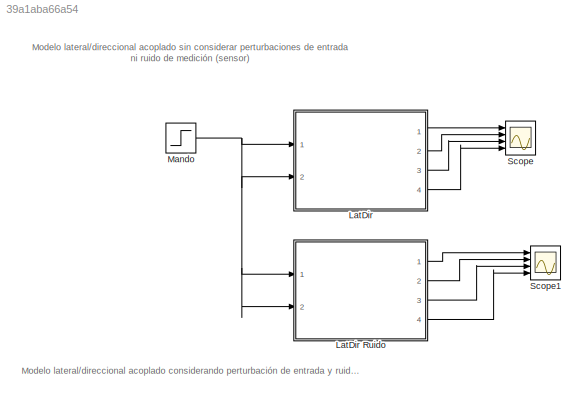
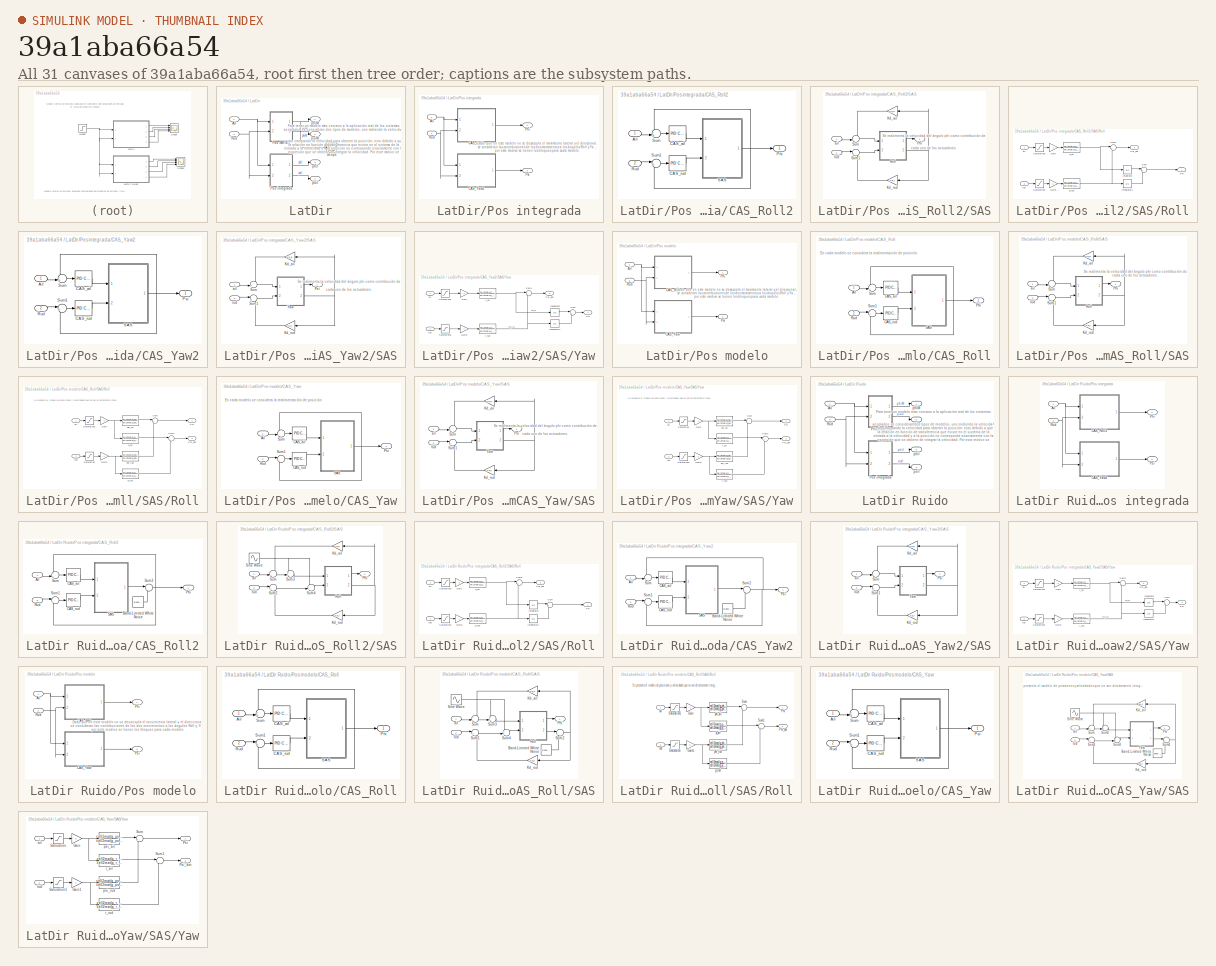
[diagram: thumbnail index - all 31 canvases of the model, root first then tree order]
MODEL slx_39a1aba66a54
KIND model
CONFIG AbsTol = auto
CONFIG EnableMultiTasking = off
CONFIG FixedStep = auto
CONFIG MaxStep = auto
CONFIG MinStep = auto
CONFIG RelTol = 1e-3
CONFIG SampleTimeConstraint = Unconstrained
CONFIG SolverName = VariableStepAuto
CONFIG StartTime = 0.0
CONFIG StopTime = 10
BLOCK [SubSystem] LatDir
  Ports = [2, 4]
  RequestExecContextInheritance = off
BLOCK [SubSystem] LatDir Ruido
  Ports = [2, 4]
  RequestExecContextInheritance = off
BLOCK [Inport] LatDir Ruido/Ail
BLOCK [SubSystem] LatDir Ruido/Pos integrada
  Ports = [2, 2]
  RequestExecContextInheritance = off
BLOCK [Inport] LatDir Ruido/Pos integrada/Ail
BLOCK [SubSystem] LatDir Ruido/Pos integrada/CAS_Roll2
  Ports = [2, 1]
  RequestExecContextInheritance = off
BLOCK [Inport] LatDir Ruido/Pos integrada/CAS_Roll2/Ail
BLOCK [Reference] LatDir Ruido/Pos integrada/CAS_Roll2/Band-Limited White Noise  REF=simulink/Sources/Band-Limited
White Noise
  Ports = [0, 1]
  SourceBlock = simulink/Sources/Band-Limited\nWhite Noise
  SourceProductBaseCode = SL
  SourceType = Band-Limited White Noise.
BLOCK [Reference] LatDir Ruido/Pos integrada/CAS_Roll2/CAS_ail  REF=pid_lib/PID Controller
  Ports = [1, 1]
  SourceBlock = pid_lib/PID Controller
  SourceProductBaseCode = SL
  SourceType = PID 1dof
BLOCK [Reference] LatDir Ruido/Pos integrada/CAS_Roll2/CAS_rud  REF=pid_lib/PID Controller
  Ports = [1, 1]
  SourceBlock = pid_lib/PID Controller
  SourceProductBaseCode = SL
  SourceType = PID 1dof
BLOCK [Outport] LatDir Ruido/Pos integrada/CAS_Roll2/Phi
BLOCK [Inport] LatDir Ruido/Pos integrada/CAS_Roll2/Rud
  Port = 2
BLOCK [SubSystem] LatDir Ruido/Pos integrada/CAS_Roll2/SAS
  Ports = [2, 1]
  RequestExecContextInheritance = off
BLOCK [Gain] LatDir Ruido/Pos integrada/CAS_Roll2/SAS/Kd_ail
  Gain = Kd_a
BLOCK [Gain] LatDir Ruido/Pos integrada/CAS_Roll2/SAS/Kd_rud
  Gain = Kd_r
BLOCK [Outport] LatDir Ruido/Pos integrada/CAS_Roll2/SAS/Phi
BLOCK [SubSystem] LatDir Ruido/Pos integrada/CAS_Roll2/SAS/Roll
  Ports = [2, 2]
  RequestExecContextInheritance = off
BLOCK [Gain] LatDir Ruido/Pos integrada/CAS_Roll2/SAS/Roll/Gain
  Gain = -1
BLOCK [Gain] LatDir Ruido/Pos integrada/CAS_Roll2/SAS/Roll/Gain1
  Gain = -1
BLOCK [Integrator] LatDir Ruido/Pos integrada/CAS_Roll2/SAS/Roll/Integrator
  Ports = [1, 1]
BLOCK [Integrator] LatDir Ruido/Pos integrada/CAS_Roll2/SAS/Roll/Integrator1
  Ports = [1, 1]
BLOCK [Outport] LatDir Ruido/Pos integrada/CAS_Roll2/SAS/Roll/Phi
BLOCK [Outport] LatDir Ruido/Pos integrada/CAS_Roll2/SAS/Roll/Phi_dot
  Port = 2
BLOCK [Saturate] LatDir Ruido/Pos integrada/CAS_Roll2/SAS/Roll/Saturation1
  LowerLimit = -30
  UpperLimit = 30
BLOCK [Saturate] LatDir Ruido/Pos integrada/CAS_Roll2/SAS/Roll/Saturation2
  LowerLimit = -30
  UpperLimit = 30
BLOCK [Sum] LatDir Ruido/Pos integrada/CAS_Roll2/SAS/Roll/Sum
  Inputs = |++
  Ports = [2, 1]
BLOCK [Sum] LatDir Ruido/Pos integrada/CAS_Roll2/SAS/Roll/Sum1
  Inputs = |++
  Ports = [2, 1]
BLOCK [Inport] LatDir Ruido/Pos integrada/CAS_Roll2/SAS/Roll/ail
BLOCK [TransferFcn] LatDir Ruido/Pos integrada/CAS_Roll2/SAS/Roll/p_ail
  Denominator = cell2mat(g_p_ail.Denominator)
  Numerator = cell2mat(g_p_ail.Numerator)
BLOCK [TransferFcn] LatDir Ruido/Pos integrada/CAS_Roll2/SAS/Roll/p_rud
  Denominator = cell2mat(g_p_rud.Denominator)
  Numerator = cell2mat(g_p_rud.Numerator)
BLOCK [Inport] LatDir Ruido/Pos integrada/CAS_Roll2/SAS/Roll/rud 
  Port = 2
BLOCK [Sin] LatDir Ruido/Pos integrada/CAS_Roll2/SAS/Sine Wave
  Ports = [0, 1]
  SampleTime = 0
BLOCK [Sum] LatDir Ruido/Pos integrada/CAS_Roll2/SAS/Sum
  Inputs = -+|
  Ports = [2, 1]
BLOCK [Sum] LatDir Ruido/Pos integrada/CAS_Roll2/SAS/Sum1
  Inputs = |+-
  Ports = [2, 1]
BLOCK [Sum] LatDir Ruido/Pos integrada/CAS_Roll2/SAS/Sum3
  Inputs = ++|
  Ports = [2, 1]
BLOCK [Sum] LatDir Ruido/Pos integrada/CAS_Roll2/SAS/Sum4
  Inputs = ++|
  Ports = [2, 1]
BLOCK [Inport] LatDir Ruido/Pos integrada/CAS_Roll2/SAS/ail
BLOCK [Inport] LatDir Ruido/Pos integrada/CAS_Roll2/SAS/rud 
  Port = 2
BLOCK [Sum] LatDir Ruido/Pos integrada/CAS_Roll2/Sum
  Inputs = -+|
  Ports = [2, 1]
BLOCK [Sum] LatDir Ruido/Pos integrada/CAS_Roll2/Sum1
  Inputs = |+-
  Ports = [2, 1]
BLOCK [Sum] LatDir Ruido/Pos integrada/CAS_Roll2/Sum2
  Inputs = |++
  Ports = [2, 1]
BLOCK [SubSystem] LatDir Ruido/Pos integrada/CAS_Yaw2
  Ports = [2, 1]
  RequestExecContextInheritance = off
BLOCK [Inport] LatDir Ruido/Pos integrada/CAS_Yaw2/Ail
BLOCK [Reference] LatDir Ruido/Pos integrada/CAS_Yaw2/Band-Limited White Noise  REF=simulink/Sources/Band-Limited
White Noise
  Ports = [0, 1]
  SourceBlock = simulink/Sources/Band-Limited\nWhite Noise
  SourceProductBaseCode = SL
  SourceType = Band-Limited White Noise.
BLOCK [Reference] LatDir Ruido/Pos integrada/CAS_Yaw2/CAS_ail  REF=pid_lib/PID Controller
  Ports = [1, 1]
  SourceBlock = pid_lib/PID Controller
  SourceProductBaseCode = SL
  SourceType = PID 1dof
BLOCK [Reference] LatDir Ruido/Pos integrada/CAS_Yaw2/CAS_rud  REF=pid_lib/PID Controller
  Ports = [1, 1]
  SourceBlock = pid_lib/PID Controller
  SourceProductBaseCode = SL
  SourceType = PID 1dof
BLOCK [Outport] LatDir Ruido/Pos integrada/CAS_Yaw2/Psi
BLOCK [Inport] LatDir Ruido/Pos integrada/CAS_Yaw2/Rud
  Port = 2
BLOCK [SubSystem] LatDir Ruido/Pos integrada/CAS_Yaw2/SAS
  Ports = [2, 1]
  RequestExecContextInheritance = off
BLOCK [Gain] LatDir Ruido/Pos integrada/CAS_Yaw2/SAS/Kd_ail
  Gain = Kd_a
BLOCK [Gain] LatDir Ruido/Pos integrada/CAS_Yaw2/SAS/Kd_rud
  Gain = Kd_r
BLOCK [Outport] LatDir Ruido/Pos integrada/CAS_Yaw2/SAS/Psi
BLOCK [Sum] LatDir Ruido/Pos integrada/CAS_Yaw2/SAS/Sum
  Inputs = -+|
  Ports = [2, 1]
BLOCK [Sum] LatDir Ruido/Pos integrada/CAS_Yaw2/SAS/Sum1
  Inputs = |+-
  Ports = [2, 1]
BLOCK [SubSystem] LatDir Ruido/Pos integrada/CAS_Yaw2/SAS/Yaw
  Ports = [2, 2]
  RequestExecContextInheritance = off
BLOCK [Gain] LatDir Ruido/Pos integrada/CAS_Yaw2/SAS/Yaw/Gain
  Gain = -1
BLOCK [Gain] LatDir Ruido/Pos integrada/CAS_Yaw2/SAS/Yaw/Gain1
  Gain = -1
BLOCK [Integrator] LatDir Ruido/Pos integrada/CAS_Yaw2/SAS/Yaw/Integrator
  Ports = [1, 1]
BLOCK [Integrator] LatDir Ruido/Pos integrada/CAS_Yaw2/SAS/Yaw/Integrator1
  Ports = [1, 1]
BLOCK [Outport] LatDir Ruido/Pos integrada/CAS_Yaw2/SAS/Yaw/Psi
BLOCK [Outport] LatDir Ruido/Pos integrada/CAS_Yaw2/SAS/Yaw/Psi_dot
  Port = 2
BLOCK [Saturate] LatDir Ruido/Pos integrada/CAS_Yaw2/SAS/Yaw/Saturation1
  LowerLimit = -30
  UpperLimit = 30
BLOCK [Saturate] LatDir Ruido/Pos integrada/CAS_Yaw2/SAS/Yaw/Saturation2
  LowerLimit = -30
  UpperLimit = 30
BLOCK [Sum] LatDir Ruido/Pos integrada/CAS_Yaw2/SAS/Yaw/Sum
  Inputs = |++
  Ports = [2, 1]
BLOCK [Sum] LatDir Ruido/Pos integrada/CAS_Yaw2/SAS/Yaw/Sum1
  Inputs = |++
  Ports = [2, 1]
BLOCK [Inport] LatDir Ruido/Pos integrada/CAS_Yaw2/SAS/Yaw/ail
BLOCK [TransferFcn] LatDir Ruido/Pos integrada/CAS_Yaw2/SAS/Yaw/r_ail
  Denominator = cell2mat(g_r_ail.Denominator)
  Numerator = cell2mat(g_r_ail.Numerator)
BLOCK [TransferFcn] LatDir Ruido/Pos integrada/CAS_Yaw2/SAS/Yaw/r_rud
  Denominator = cell2mat(g_r_rud.Denominator)
  Numerator = cell2mat(g_r_rud.Numerator)
BLOCK [Inport] LatDir Ruido/Pos integrada/CAS_Yaw2/SAS/Yaw/rud 
  Port = 2
BLOCK [Inport] LatDir Ruido/Pos integrada/CAS_Yaw2/SAS/ail
BLOCK [Inport] LatDir Ruido/Pos integrada/CAS_Yaw2/SAS/rud 
  Port = 2
BLOCK [Sum] LatDir Ruido/Pos integrada/CAS_Yaw2/Sum
  Inputs = -+|
  Ports = [2, 1]
BLOCK [Sum] LatDir Ruido/Pos integrada/CAS_Yaw2/Sum1
  Inputs = |+-
  Ports = [2, 1]
BLOCK [Sum] LatDir Ruido/Pos integrada/CAS_Yaw2/Sum2
  Inputs = |++
  Ports = [2, 1]
BLOCK [Outport] LatDir Ruido/Pos integrada/Phi
BLOCK [Outport] LatDir Ruido/Pos integrada/Psi
  Port = 2
BLOCK [Inport] LatDir Ruido/Pos integrada/Rud
  Port = 2
BLOCK [SubSystem] LatDir Ruido/Pos modelo
  Ports = [2, 2]
  RequestExecContextInheritance = off
BLOCK [Inport] LatDir Ruido/Pos modelo/Ail
BLOCK [SubSystem] LatDir Ruido/Pos modelo/CAS_Roll
  Ports = [2, 1]
  RequestExecContextInheritance = off
BLOCK [Inport] LatDir Ruido/Pos modelo/CAS_Roll/Ail
BLOCK [Reference] LatDir Ruido/Pos modelo/CAS_Roll/CAS_ail  REF=pid_lib/PID Controller
  Ports = [1, 1]
  SourceBlock = pid_lib/PID Controller
  SourceProductBaseCode = SL
  SourceType = PID 1dof
BLOCK [Reference] LatDir Ruido/Pos modelo/CAS_Roll/CAS_rud  REF=pid_lib/PID Controller
  Ports = [1, 1]
  SourceBlock = pid_lib/PID Controller
  SourceProductBaseCode = SL
  SourceType = PID 1dof
BLOCK [Outport] LatDir Ruido/Pos modelo/CAS_Roll/Phi
BLOCK [Inport] LatDir Ruido/Pos modelo/CAS_Roll/Rud
  Port = 2
BLOCK [SubSystem] LatDir Ruido/Pos modelo/CAS_Roll/SAS
  Ports = [2, 1]
  RequestExecContextInheritance = off
BLOCK [Reference] LatDir Ruido/Pos modelo/CAS_Roll/SAS/Band-Limited White Noise  REF=simulink/Sources/Band-Limited
White Noise
  Ports = [0, 1]
  SourceBlock = simulink/Sources/Band-Limited\nWhite Noise
  SourceProductBaseCode = SL
  SourceType = Band-Limited White Noise.
BLOCK [Gain] LatDir Ruido/Pos modelo/CAS_Roll/SAS/Kd_ail
  Gain = Kd_a
BLOCK [Gain] LatDir Ruido/Pos modelo/CAS_Roll/SAS/Kd_rud
  Gain = Kd_r
BLOCK [Outport] LatDir Ruido/Pos modelo/CAS_Roll/SAS/Phi
BLOCK [SubSystem] LatDir Ruido/Pos modelo/CAS_Roll/SAS/Roll
  Ports = [2, 2]
  RequestExecContextInheritance = off
BLOCK [Gain] LatDir Ruido/Pos modelo/CAS_Roll/SAS/Roll/Gain
  Gain = -1
BLOCK [Gain] LatDir Ruido/Pos modelo/CAS_Roll/SAS/Roll/Gain1
  Gain = -1
BLOCK [Outport] LatDir Ruido/Pos modelo/CAS_Roll/SAS/Roll/Phi
BLOCK [Outport] LatDir Ruido/Pos modelo/CAS_Roll/SAS/Roll/Phi_dot
  Port = 2
BLOCK [Saturate] LatDir Ruido/Pos modelo/CAS_Roll/SAS/Roll/Saturation
  LowerLimit = -30
  UpperLimit = 30
BLOCK [Saturate] LatDir Ruido/Pos modelo/CAS_Roll/SAS/Roll/Saturation1
  LowerLimit = -30
  UpperLimit = 30
BLOCK [Sum] LatDir Ruido/Pos modelo/CAS_Roll/SAS/Roll/Sum
  Inputs = |++
  Ports = [2, 1]
BLOCK [Sum] LatDir Ruido/Pos modelo/CAS_Roll/SAS/Roll/Sum1
  Inputs = |++
  Ports = [2, 1]
BLOCK [Inport] LatDir Ruido/Pos modelo/CAS_Roll/SAS/Roll/ail
BLOCK [TransferFcn] LatDir Ruido/Pos modelo/CAS_Roll/SAS/Roll/p_ail
  Denominator = cell2mat(g_p_ail.Denominator)
  Numerator = cell2mat(g_p_ail.Numerator)
BLOCK [TransferFcn] LatDir Ruido/Pos modelo/CAS_Roll/SAS/Roll/p_rud
  Denominator = cell2mat(g_p_rud.Denominator)
  Numerator = cell2mat(g_p_rud.Numerator)
BLOCK [TransferFcn] LatDir Ruido/Pos modelo/CAS_Roll/SAS/Roll/phi_ail
  Denominator = cell2mat(g_phi_ail.Denominator)
  Numerator = cell2mat(g_phi_ail.Numerator)
BLOCK [TransferFcn] LatDir Ruido/Pos modelo/CAS_Roll/SAS/Roll/phi_rud
  Denominator = cell2mat(g_phi_rud.Denominator)
  Numerator = cell2mat(g_phi_rud.Numerator)
BLOCK [Inport] LatDir Ruido/Pos modelo/CAS_Roll/SAS/Roll/rud 
  Port = 2
BLOCK [Sin] LatDir Ruido/Pos modelo/CAS_Roll/SAS/Sine Wave
  Frequency = 12*pi
  Ports = [0, 1]
  SampleTime = 0
BLOCK [Sum] LatDir Ruido/Pos modelo/CAS_Roll/SAS/Sum
  Inputs = -+|
  Ports = [2, 1]
BLOCK [Sum] LatDir Ruido/Pos modelo/CAS_Roll/SAS/Sum1
  Inputs = |+-
  Ports = [2, 1]
BLOCK [Sum] LatDir Ruido/Pos modelo/CAS_Roll/SAS/Sum2
  Inputs = |++
  Ports = [2, 1]
BLOCK [Sum] LatDir Ruido/Pos modelo/CAS_Roll/SAS/Sum3
  Inputs = ++|
  Ports = [2, 1]
BLOCK [Sum] LatDir Ruido/Pos modelo/CAS_Roll/SAS/Sum4
  Inputs = ++|
  Ports = [2, 1]
BLOCK [Inport] LatDir Ruido/Pos modelo/CAS_Roll/SAS/ail
BLOCK [Inport] LatDir Ruido/Pos modelo/CAS_Roll/SAS/rud 
  Port = 2
BLOCK [Sum] LatDir Ruido/Pos modelo/CAS_Roll/Sum
  Inputs = -+|
  Ports = [2, 1]
BLOCK [Sum] LatDir Ruido/Pos modelo/CAS_Roll/Sum1
  Inputs = |+-
  Ports = [2, 1]
BLOCK [SubSystem] LatDir Ruido/Pos modelo/CAS_Yaw
  Ports = [2, 1]
  RequestExecContextInheritance = off
BLOCK [Inport] LatDir Ruido/Pos modelo/CAS_Yaw/Ail
BLOCK [Reference] LatDir Ruido/Pos modelo/CAS_Yaw/CAS_ail  REF=pid_lib/PID Controller
  Ports = [1, 1]
  SourceBlock = pid_lib/PID Controller
  SourceProductBaseCode = SL
  SourceType = PID 1dof
BLOCK [Reference] LatDir Ruido/Pos modelo/CAS_Yaw/CAS_rud  REF=pid_lib/PID Controller
  Ports = [1, 1]
  SourceBlock = pid_lib/PID Controller
  SourceProductBaseCode = SL
  SourceType = PID 1dof
BLOCK [Outport] LatDir Ruido/Pos modelo/CAS_Yaw/Psi
BLOCK [Inport] LatDir Ruido/Pos modelo/CAS_Yaw/Rud
  Port = 2
BLOCK [SubSystem] LatDir Ruido/Pos modelo/CAS_Yaw/SAS
  Ports = [2, 1]
  RequestExecContextInheritance = off
BLOCK [Reference] LatDir Ruido/Pos modelo/CAS_Yaw/SAS/Band-Limited White Noise  REF=simulink/Sources/Band-Limited
White Noise
  Ports = [0, 1]
  SourceBlock = simulink/Sources/Band-Limited\nWhite Noise
  SourceProductBaseCode = SL
  SourceType = Band-Limited White Noise.
BLOCK [Gain] LatDir Ruido/Pos modelo/CAS_Yaw/SAS/Kd_ail
  Gain = Kd_a
BLOCK [Gain] LatDir Ruido/Pos modelo/CAS_Yaw/SAS/Kd_rud
  Gain = Kd_r
BLOCK [Outport] LatDir Ruido/Pos modelo/CAS_Yaw/SAS/Psi
BLOCK [Sin] LatDir Ruido/Pos modelo/CAS_Yaw/SAS/Sine Wave
  Frequency = 12*pi
  Ports = [0, 1]
  SampleTime = 0
BLOCK [Sum] LatDir Ruido/Pos modelo/CAS_Yaw/SAS/Sum
  Inputs = -+|
  Ports = [2, 1]
BLOCK [Sum] LatDir Ruido/Pos modelo/CAS_Yaw/SAS/Sum1
  Inputs = |+-
  Ports = [2, 1]
BLOCK [Sum] LatDir Ruido/Pos modelo/CAS_Yaw/SAS/Sum2
  Inputs = ++|
  Ports = [2, 1]
BLOCK [Sum] LatDir Ruido/Pos modelo/CAS_Yaw/SAS/Sum3
  Inputs = ++|
  Ports = [2, 1]
BLOCK [Sum] LatDir Ruido/Pos modelo/CAS_Yaw/SAS/Sum4
  Inputs = |+-
  Ports = [2, 1]
BLOCK [SubSystem] LatDir Ruido/Pos modelo/CAS_Yaw/SAS/Yaw
  Ports = [2, 2]
  RequestExecContextInheritance = off
BLOCK [Gain] LatDir Ruido/Pos modelo/CAS_Yaw/SAS/Yaw/Gain
  Gain = -1
BLOCK [Gain] LatDir Ruido/Pos modelo/CAS_Yaw/SAS/Yaw/Gain1
  Gain = -1
BLOCK [Outport] LatDir Ruido/Pos modelo/CAS_Yaw/SAS/Yaw/Psi
BLOCK [Outport] LatDir Ruido/Pos modelo/CAS_Yaw/SAS/Yaw/Psi_dot
  Port = 2
BLOCK [Saturate] LatDir Ruido/Pos modelo/CAS_Yaw/SAS/Yaw/Saturation
  LowerLimit = -30
  UpperLimit = 30
BLOCK [Saturate] LatDir Ruido/Pos modelo/CAS_Yaw/SAS/Yaw/Saturation1
  LowerLimit = -30
  UpperLimit = 30
BLOCK [Sum] LatDir Ruido/Pos modelo/CAS_Yaw/SAS/Yaw/Sum
  Inputs = |++
  Ports = [2, 1]
BLOCK [Sum] LatDir Ruido/Pos modelo/CAS_Yaw/SAS/Yaw/Sum1
  Inputs = |++
  Ports = [2, 1]
BLOCK [Inport] LatDir Ruido/Pos modelo/CAS_Yaw/SAS/Yaw/ail
BLOCK [TransferFcn] LatDir Ruido/Pos modelo/CAS_Yaw/SAS/Yaw/psi_ail
  Denominator = cell2mat(g_psi_ail.Denominator)
  Numerator = cell2mat(g_psi_ail.Numerator)
BLOCK [TransferFcn] LatDir Ruido/Pos modelo/CAS_Yaw/SAS/Yaw/psi_rud
  Denominator = cell2mat(g_psi_rud.Denominator)
  Numerator = cell2mat(g_psi_rud.Numerator)
BLOCK [TransferFcn] LatDir Ruido/Pos modelo/CAS_Yaw/SAS/Yaw/r_ail
  Denominator = cell2mat(g_r_ail.Denominator)
  Numerator = cell2mat(g_r_ail.Numerator)
BLOCK [TransferFcn] LatDir Ruido/Pos modelo/CAS_Yaw/SAS/Yaw/r_rud
  Denominator = cell2mat(g_r_rud.Denominator)
  Numerator = cell2mat(g_r_rud.Numerator)
BLOCK [Inport] LatDir Ruido/Pos modelo/CAS_Yaw/SAS/Yaw/rud 
  Port = 2
BLOCK [Inport] LatDir Ruido/Pos modelo/CAS_Yaw/SAS/ail
BLOCK [Inport] LatDir Ruido/Pos modelo/CAS_Yaw/SAS/rud 
  Port = 2
BLOCK [Sum] LatDir Ruido/Pos modelo/CAS_Yaw/Sum
  Inputs = -+|
  Ports = [2, 1]
BLOCK [Sum] LatDir Ruido/Pos modelo/CAS_Yaw/Sum1
  Inputs = |+-
  Ports = [2, 1]
BLOCK [Outport] LatDir Ruido/Pos modelo/Phi
BLOCK [Outport] LatDir Ruido/Pos modelo/Psi
  Port = 2
BLOCK [Inport] LatDir Ruido/Pos modelo/Rud
  Port = 2
BLOCK [Inport] LatDir Ruido/Rud
  Port = 2
BLOCK [Outport] LatDir Ruido/phiI
  Port = 3
BLOCK [Outport] LatDir Ruido/phiM
BLOCK [Outport] LatDir Ruido/psiI
  Port = 4
BLOCK [Outport] LatDir Ruido/psiM
  Port = 2
BLOCK [Inport] LatDir/Ail
BLOCK [SubSystem] LatDir/Pos integrada
  Ports = [2, 2]
  RequestExecContextInheritance = off
BLOCK [Inport] LatDir/Pos integrada/Ail
BLOCK [SubSystem] LatDir/Pos integrada/CAS_Roll2
  Ports = [2, 1]
  RequestExecContextInheritance = off
BLOCK [Inport] LatDir/Pos integrada/CAS_Roll2/Ail
BLOCK [Reference] LatDir/Pos integrada/CAS_Roll2/CAS_ail  REF=pid_lib/PID Controller
  Ports = [1, 1]
  SourceBlock = pid_lib/PID Controller
  SourceProductBaseCode = SL
  SourceType = PID 1dof
BLOCK [Reference] LatDir/Pos integrada/CAS_Roll2/CAS_rud  REF=pid_lib/PID Controller
  Ports = [1, 1]
  SourceBlock = pid_lib/PID Controller
  SourceProductBaseCode = SL
  SourceType = PID 1dof
BLOCK [Outport] LatDir/Pos integrada/CAS_Roll2/Phi
BLOCK [Inport] LatDir/Pos integrada/CAS_Roll2/Rud
  Port = 2
BLOCK [SubSystem] LatDir/Pos integrada/CAS_Roll2/SAS
  Ports = [2, 1]
  RequestExecContextInheritance = off
BLOCK [Gain] LatDir/Pos integrada/CAS_Roll2/SAS/Kd_ail
  Gain = Kd_a
BLOCK [Gain] LatDir/Pos integrada/CAS_Roll2/SAS/Kd_rud
  Gain = Kd_r
BLOCK [Outport] LatDir/Pos integrada/CAS_Roll2/SAS/Phi
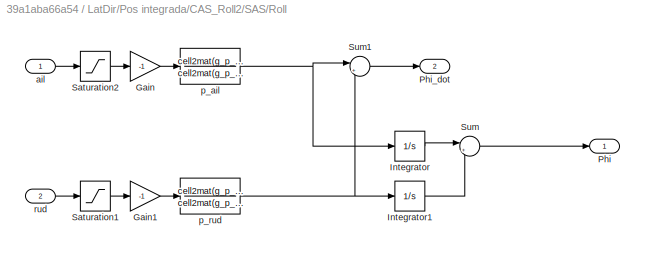
BLOCK [SubSystem] LatDir/Pos integrada/CAS_Roll2/SAS/Roll
  Ports = [2, 2]
  RequestExecContextInheritance = off
BLOCK [Gain] LatDir/Pos integrada/CAS_Roll2/SAS/Roll/Gain
  Gain = -1
BLOCK [Gain] LatDir/Pos integrada/CAS_Roll2/SAS/Roll/Gain1
  Gain = -1
BLOCK [Integrator] LatDir/Pos integrada/CAS_Roll2/SAS/Roll/Integrator
  Ports = [1, 1]
BLOCK [Integrator] LatDir/Pos integrada/CAS_Roll2/SAS/Roll/Integrator1
  Ports = [1, 1]
BLOCK [Outport] LatDir/Pos integrada/CAS_Roll2/SAS/Roll/Phi
BLOCK [Outport] LatDir/Pos integrada/CAS_Roll2/SAS/Roll/Phi_dot
  Port = 2
BLOCK [Saturate] LatDir/Pos integrada/CAS_Roll2/SAS/Roll/Saturation1
  LowerLimit = -30
  UpperLimit = 30
BLOCK [Saturate] LatDir/Pos integrada/CAS_Roll2/SAS/Roll/Saturation2
  LowerLimit = -30
  UpperLimit = 30
BLOCK [Sum] LatDir/Pos integrada/CAS_Roll2/SAS/Roll/Sum
  Inputs = |++
  Ports = [2, 1]
BLOCK [Sum] LatDir/Pos integrada/CAS_Roll2/SAS/Roll/Sum1
  Inputs = |++
  Ports = [2, 1]
BLOCK [Inport] LatDir/Pos integrada/CAS_Roll2/SAS/Roll/ail
BLOCK [TransferFcn] LatDir/Pos integrada/CAS_Roll2/SAS/Roll/p_ail
  Denominator = cell2mat(g_p_ail.Denominator)
  Numerator = cell2mat(g_p_ail.Numerator)
BLOCK [TransferFcn] LatDir/Pos integrada/CAS_Roll2/SAS/Roll/p_rud
  Denominator = cell2mat(g_p_rud.Denominator)
  Numerator = cell2mat(g_p_rud.Numerator)
BLOCK [Inport] LatDir/Pos integrada/CAS_Roll2/SAS/Roll/rud 
  Port = 2
BLOCK [Sum] LatDir/Pos integrada/CAS_Roll2/SAS/Sum
  Inputs = -+|
  Ports = [2, 1]
BLOCK [Sum] LatDir/Pos integrada/CAS_Roll2/SAS/Sum1
  Inputs = |+-
  Ports = [2, 1]
BLOCK [Inport] LatDir/Pos integrada/CAS_Roll2/SAS/ail
BLOCK [Inport] LatDir/Pos integrada/CAS_Roll2/SAS/rud 
  Port = 2
BLOCK [Sum] LatDir/Pos integrada/CAS_Roll2/Sum
  Inputs = -+|
  Ports = [2, 1]
BLOCK [Sum] LatDir/Pos integrada/CAS_Roll2/Sum1
  Inputs = |+-
  Ports = [2, 1]
BLOCK [SubSystem] LatDir/Pos integrada/CAS_Yaw2
  Ports = [2, 1]
  RequestExecContextInheritance = off
BLOCK [Inport] LatDir/Pos integrada/CAS_Yaw2/Ail
BLOCK [Reference] LatDir/Pos integrada/CAS_Yaw2/CAS_ail  REF=pid_lib/PID Controller
  Ports = [1, 1]
  SourceBlock = pid_lib/PID Controller
  SourceProductBaseCode = SL
  SourceType = PID 1dof
BLOCK [Reference] LatDir/Pos integrada/CAS_Yaw2/CAS_rud  REF=pid_lib/PID Controller
  Ports = [1, 1]
  SourceBlock = pid_lib/PID Controller
  SourceProductBaseCode = SL
  SourceType = PID 1dof
BLOCK [Outport] LatDir/Pos integrada/CAS_Yaw2/Psi
BLOCK [Inport] LatDir/Pos integrada/CAS_Yaw2/Rud
  Port = 2
BLOCK [SubSystem] LatDir/Pos integrada/CAS_Yaw2/SAS
  Ports = [2, 1]
  RequestExecContextInheritance = off
BLOCK [Gain] LatDir/Pos integrada/CAS_Yaw2/SAS/Kd_ail
  Gain = Kd_a
BLOCK [Gain] LatDir/Pos integrada/CAS_Yaw2/SAS/Kd_rud
  Gain = Kd_r
BLOCK [Outport] LatDir/Pos integrada/CAS_Yaw2/SAS/Psi
BLOCK [Sum] LatDir/Pos integrada/CAS_Yaw2/SAS/Sum
  Inputs = -+|
  Ports = [2, 1]
BLOCK [Sum] LatDir/Pos integrada/CAS_Yaw2/SAS/Sum1
  Inputs = |+-
  Ports = [2, 1]
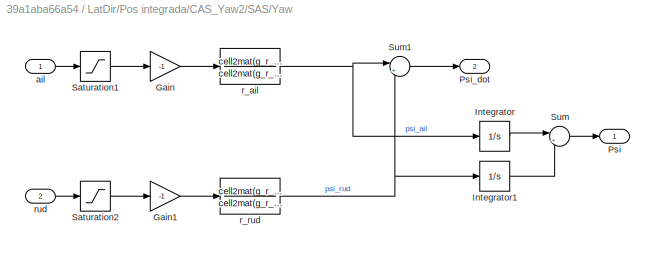
BLOCK [SubSystem] LatDir/Pos integrada/CAS_Yaw2/SAS/Yaw
  Ports = [2, 2]
  RequestExecContextInheritance = off
BLOCK [Gain] LatDir/Pos integrada/CAS_Yaw2/SAS/Yaw/Gain
  Gain = -1
BLOCK [Gain] LatDir/Pos integrada/CAS_Yaw2/SAS/Yaw/Gain1
  Gain = -1
BLOCK [Integrator] LatDir/Pos integrada/CAS_Yaw2/SAS/Yaw/Integrator
  Ports = [1, 1]
BLOCK [Integrator] LatDir/Pos integrada/CAS_Yaw2/SAS/Yaw/Integrator1
  Ports = [1, 1]
BLOCK [Outport] LatDir/Pos integrada/CAS_Yaw2/SAS/Yaw/Psi
BLOCK [Outport] LatDir/Pos integrada/CAS_Yaw2/SAS/Yaw/Psi_dot
  Port = 2
BLOCK [Saturate] LatDir/Pos integrada/CAS_Yaw2/SAS/Yaw/Saturation1
  LowerLimit = -30
  UpperLimit = 30
BLOCK [Saturate] LatDir/Pos integrada/CAS_Yaw2/SAS/Yaw/Saturation2
  LowerLimit = -30
  UpperLimit = 30
BLOCK [Sum] LatDir/Pos integrada/CAS_Yaw2/SAS/Yaw/Sum
  Inputs = |++
  Ports = [2, 1]
BLOCK [Sum] LatDir/Pos integrada/CAS_Yaw2/SAS/Yaw/Sum1
  Inputs = |++
  Ports = [2, 1]
BLOCK [Inport] LatDir/Pos integrada/CAS_Yaw2/SAS/Yaw/ail
BLOCK [TransferFcn] LatDir/Pos integrada/CAS_Yaw2/SAS/Yaw/r_ail
  Denominator = cell2mat(g_r_ail.Denominator)
  Numerator = cell2mat(g_r_ail.Numerator)
BLOCK [TransferFcn] LatDir/Pos integrada/CAS_Yaw2/SAS/Yaw/r_rud
  Denominator = cell2mat(g_r_rud.Denominator)
  Numerator = cell2mat(g_r_rud.Numerator)
BLOCK [Inport] LatDir/Pos integrada/CAS_Yaw2/SAS/Yaw/rud 
  Port = 2
BLOCK [Inport] LatDir/Pos integrada/CAS_Yaw2/SAS/ail
BLOCK [Inport] LatDir/Pos integrada/CAS_Yaw2/SAS/rud 
  Port = 2
BLOCK [Sum] LatDir/Pos integrada/CAS_Yaw2/Sum
  Inputs = -+|
  Ports = [2, 1]
BLOCK [Sum] LatDir/Pos integrada/CAS_Yaw2/Sum1
  Inputs = |+-
  Ports = [2, 1]
BLOCK [Outport] LatDir/Pos integrada/Phi
BLOCK [Outport] LatDir/Pos integrada/Psi
  Port = 2
BLOCK [Inport] LatDir/Pos integrada/Rud
  Port = 2
BLOCK [SubSystem] LatDir/Pos modelo
  Ports = [2, 2]
  RequestExecContextInheritance = off
BLOCK [Inport] LatDir/Pos modelo/Ail
BLOCK [SubSystem] LatDir/Pos modelo/CAS_Roll
  Ports = [2, 1]
  RequestExecContextInheritance = off
BLOCK [Inport] LatDir/Pos modelo/CAS_Roll/Ail
BLOCK [Reference] LatDir/Pos modelo/CAS_Roll/CAS_ail  REF=pid_lib/PID Controller
  Ports = [1, 1]
  SourceBlock = pid_lib/PID Controller
  SourceProductBaseCode = SL
  SourceType = PID 1dof
BLOCK [Reference] LatDir/Pos modelo/CAS_Roll/CAS_rud  REF=pid_lib/PID Controller
  Ports = [1, 1]
  SourceBlock = pid_lib/PID Controller
  SourceProductBaseCode = SL
  SourceType = PID 1dof
BLOCK [Outport] LatDir/Pos modelo/CAS_Roll/Phi
BLOCK [Inport] LatDir/Pos modelo/CAS_Roll/Rud
  Port = 2
BLOCK [SubSystem] LatDir/Pos modelo/CAS_Roll/SAS
  Ports = [2, 1]
  RequestExecContextInheritance = off
BLOCK [Gain] LatDir/Pos modelo/CAS_Roll/SAS/Kd_ail
  Gain = Kd_a
BLOCK [Gain] LatDir/Pos modelo/CAS_Roll/SAS/Kd_rud
  Gain = Kd_r
BLOCK [Outport] LatDir/Pos modelo/CAS_Roll/SAS/Phi
BLOCK [SubSystem] LatDir/Pos modelo/CAS_Roll/SAS/Roll
  Ports = [2, 2]
  RequestExecContextInheritance = off
BLOCK [Gain] LatDir/Pos modelo/CAS_Roll/SAS/Roll/Gain
  Gain = -1
BLOCK [Gain] LatDir/Pos modelo/CAS_Roll/SAS/Roll/Gain1
  Gain = -1
BLOCK [Outport] LatDir/Pos modelo/CAS_Roll/SAS/Roll/Phi
BLOCK [Outport] LatDir/Pos modelo/CAS_Roll/SAS/Roll/Phi_dot
  Port = 2
BLOCK [Saturate] LatDir/Pos modelo/CAS_Roll/SAS/Roll/Saturation
  LowerLimit = -30
  UpperLimit = 30
BLOCK [Saturate] LatDir/Pos modelo/CAS_Roll/SAS/Roll/Saturation1
  LowerLimit = -30
  UpperLimit = 30
BLOCK [Sum] LatDir/Pos modelo/CAS_Roll/SAS/Roll/Sum
  Inputs = |++
  Ports = [2, 1]
BLOCK [Sum] LatDir/Pos modelo/CAS_Roll/SAS/Roll/Sum1
  Inputs = |++
  Ports = [2, 1]
BLOCK [Inport] LatDir/Pos modelo/CAS_Roll/SAS/Roll/ail
BLOCK [TransferFcn] LatDir/Pos modelo/CAS_Roll/SAS/Roll/p_ail
  Denominator = cell2mat(g_p_ail.Denominator)
  Numerator = cell2mat(g_p_ail.Numerator)
BLOCK [TransferFcn] LatDir/Pos modelo/CAS_Roll/SAS/Roll/p_rud
  Denominator = cell2mat(g_p_rud.Denominator)
  Numerator = cell2mat(g_p_rud.Numerator)
BLOCK [TransferFcn] LatDir/Pos modelo/CAS_Roll/SAS/Roll/phi_ail
  Denominator = cell2mat(g_phi_ail.Denominator)
  Numerator = cell2mat(g_phi_ail.Numerator)
BLOCK [TransferFcn] LatDir/Pos modelo/CAS_Roll/SAS/Roll/phi_rud
  Denominator = cell2mat(g_phi_rud.Denominator)
  Numerator = cell2mat(g_phi_rud.Numerator)
BLOCK [Inport] LatDir/Pos modelo/CAS_Roll/SAS/Roll/rud 
  Port = 2
BLOCK [Sum] LatDir/Pos modelo/CAS_Roll/SAS/Sum
  Inputs = -+|
  Ports = [2, 1]
BLOCK [Sum] LatDir/Pos modelo/CAS_Roll/SAS/Sum1
  Inputs = |+-
  Ports = [2, 1]
BLOCK [Inport] LatDir/Pos modelo/CAS_Roll/SAS/ail
BLOCK [Inport] LatDir/Pos modelo/CAS_Roll/SAS/rud 
  Port = 2
BLOCK [Sum] LatDir/Pos modelo/CAS_Roll/Sum
  Inputs = -+|
  Ports = [2, 1]
BLOCK [Sum] LatDir/Pos modelo/CAS_Roll/Sum1
  Inputs = |+-
  Ports = [2, 1]
BLOCK [SubSystem] LatDir/Pos modelo/CAS_Yaw
  Ports = [2, 1]
  RequestExecContextInheritance = off
BLOCK [Inport] LatDir/Pos modelo/CAS_Yaw/Ail
BLOCK [Reference] LatDir/Pos modelo/CAS_Yaw/CAS_ail  REF=pid_lib/PID Controller
  Ports = [1, 1]
  SourceBlock = pid_lib/PID Controller
  SourceProductBaseCode = SL
  SourceType = PID 1dof
BLOCK [Reference] LatDir/Pos modelo/CAS_Yaw/CAS_rud  REF=pid_lib/PID Controller
  Ports = [1, 1]
  SourceBlock = pid_lib/PID Controller
  SourceProductBaseCode = SL
  SourceType = PID 1dof
BLOCK [Outport] LatDir/Pos modelo/CAS_Yaw/Psi
BLOCK [Inport] LatDir/Pos modelo/CAS_Yaw/Rud
  Port = 2
BLOCK [SubSystem] LatDir/Pos modelo/CAS_Yaw/SAS
  Ports = [2, 1]
  RequestExecContextInheritance = off
BLOCK [Gain] LatDir/Pos modelo/CAS_Yaw/SAS/Kd_ail
  Gain = Kd_a
BLOCK [Gain] LatDir/Pos modelo/CAS_Yaw/SAS/Kd_rud
  Gain = Kd_r
BLOCK [Outport] LatDir/Pos modelo/CAS_Yaw/SAS/Psi
BLOCK [Sum] LatDir/Pos modelo/CAS_Yaw/SAS/Sum
  Inputs = -+|
  Ports = [2, 1]
BLOCK [Sum] LatDir/Pos modelo/CAS_Yaw/SAS/Sum1
  Inputs = |+-
  Ports = [2, 1]
BLOCK [SubSystem] LatDir/Pos modelo/CAS_Yaw/SAS/Yaw
  Ports = [2, 2]
  RequestExecContextInheritance = off
BLOCK [Gain] LatDir/Pos modelo/CAS_Yaw/SAS/Yaw/Gain
  Gain = -1
BLOCK [Gain] LatDir/Pos modelo/CAS_Yaw/SAS/Yaw/Gain1
  Gain = -1
BLOCK [Outport] LatDir/Pos modelo/CAS_Yaw/SAS/Yaw/Psi
BLOCK [Outport] LatDir/Pos modelo/CAS_Yaw/SAS/Yaw/Psi_dot
  Port = 2
BLOCK [Saturate] LatDir/Pos modelo/CAS_Yaw/SAS/Yaw/Saturation
  LowerLimit = -30
  UpperLimit = 30
BLOCK [Saturate] LatDir/Pos modelo/CAS_Yaw/SAS/Yaw/Saturation1
  LowerLimit = -30
  UpperLimit = 30
BLOCK [Sum] LatDir/Pos modelo/CAS_Yaw/SAS/Yaw/Sum
  Inputs = |++
  Ports = [2, 1]
BLOCK [Sum] LatDir/Pos modelo/CAS_Yaw/SAS/Yaw/Sum1
  Inputs = |++
  Ports = [2, 1]
BLOCK [Inport] LatDir/Pos modelo/CAS_Yaw/SAS/Yaw/ail
BLOCK [TransferFcn] LatDir/Pos modelo/CAS_Yaw/SAS/Yaw/psi_ail
  Denominator = cell2mat(g_psi_ail.Denominator)
  Numerator = cell2mat(g_psi_ail.Numerator)
BLOCK [TransferFcn] LatDir/Pos modelo/CAS_Yaw/SAS/Yaw/psi_rud
  Denominator = cell2mat(g_psi_rud.Denominator)
  Numerator = cell2mat(g_psi_rud.Numerator)
BLOCK [TransferFcn] LatDir/Pos modelo/CAS_Yaw/SAS/Yaw/r_ail
  Denominator = cell2mat(g_r_ail.Denominator)
  Numerator = cell2mat(g_r_ail.Numerator)
BLOCK [TransferFcn] LatDir/Pos modelo/CAS_Yaw/SAS/Yaw/r_rud
  Denominator = cell2mat(g_r_rud.Denominator)
  Numerator = cell2mat(g_r_rud.Numerator)
BLOCK [Inport] LatDir/Pos modelo/CAS_Yaw/SAS/Yaw/rud 
  Port = 2
BLOCK [Inport] LatDir/Pos modelo/CAS_Yaw/SAS/ail
BLOCK [Inport] LatDir/Pos modelo/CAS_Yaw/SAS/rud 
  Port = 2
BLOCK [Sum] LatDir/Pos modelo/CAS_Yaw/Sum
  Inputs = -+|
  Ports = [2, 1]
BLOCK [Sum] LatDir/Pos modelo/CAS_Yaw/Sum1
  Inputs = |+-
  Ports = [2, 1]
BLOCK [Outport] LatDir/Pos modelo/Phi
BLOCK [Outport] LatDir/Pos modelo/Psi
  Port = 2
BLOCK [Inport] LatDir/Pos modelo/Rud
  Port = 2
BLOCK [Inport] LatDir/Rud
  Port = 2
BLOCK [Scope] LatDir/Scope
  Floating = off
  NumInputPorts = 1
  Ports = [1]
  ScopeSpecificationString = Simulink.scopes.TimeScopeBlockCfg('CurrentConfiguration', extmgr.ConfigurationSet(extmgr.Configuration('Core','General UI',true),extmgr.Configuration('Core','Source UI',true),extmgr.Configuration('Sources','WiredSimulink',true,'DataLoggingVariableName','ScopeData1'),extmgr.Configuration('Visuals','Time Domain',true,'SerializedDisplays',{struct('MinYLimReal','-34.02942','MaxYLimReal','3.78105','YLa...<+1496ch>
BLOCK [Outport] LatDir/phiI
  Port = 3
BLOCK [Outport] LatDir/phiM
BLOCK [Outport] LatDir/psiI
  Port = 4
BLOCK [Outport] LatDir/psiM
  Port = 2
BLOCK [Step] Mando
  After = -30
  SampleTime = 0
  Time = 0
BLOCK [Scope] Scope
  Floating = off
  NumInputPorts = 4
  Ports = [4]
  ScopeSpecificationString = Simulink.scopes.TimeScopeBlockCfg('CurrentConfiguration', extmgr.ConfigurationSet(extmgr.Configuration('Core','General UI',true),extmgr.Configuration('Core','Source UI',true),extmgr.Configuration('Sources','WiredSimulink',true),extmgr.Configuration('Visuals','Time Domain',true,'SerializedDisplays',{struct('MinYLimReal','-34.02942','MaxYLimReal','3.78105','YLabelReal','','MinYLimMag','0.00000','Max...<+3367ch>
BLOCK [Scope] Scope1
  Floating = off
  NumInputPorts = 4
  Ports = [4]
  ScopeSpecificationString = Simulink.scopes.TimeScopeBlockCfg('CurrentConfiguration', extmgr.ConfigurationSet(extmgr.Configuration('Core','General UI',true),extmgr.Configuration('Core','Source UI',true),extmgr.Configuration('Sources','WiredSimulink',true,'DataLoggingVariableName','ScopeData2'),extmgr.Configuration('Visuals','Time Domain',true,'SerializedDisplays',{struct('MinYLimReal','-34.07494','MaxYLimReal','3.7861','YLab...<+3468ch>
ANNOTATION (root): Modelo lateral/direccional acoplado considerando perturbación de entrada y ruido de medición (sensor).
ANNOTATION (root): Modelo lateral/direccional acoplado sin considerar perturbaciones de entrada ni ruido de medición (sensor)
ANNOTATION LatDir: Para tener un modelo más cercano a la aplicación real de los sistemas acoplados se consideran dos tipos de modelos, uno midiendo la velocidad y otro integrando la velocidad para obtener la posición; esto debido a que la relación en función de transferencia que existe en el sistema de la entrada a la velocidad y a la posición no corresponde exactamente con la expresión que se obtiene de integrar la...<+143ch>
ANNOTATION LatDir Ruido: Para tener un modelo más cercano a la aplicación real de los sistemas acoplados se consideran dos tipos de modelos, uno midiendo la velocidad y otro integrando la velocidad para obtener la posición; esto debido a que la relación en función de transferencia que existe en el sistema de la entrada a la velocidad y a la posición no corresponde exactamente con la expresión que se obtiene de integrar la...<+143ch>
ANNOTATION LatDir Ruido/Pos modelo: Dado que en este modelo no se desacopla el movimiento lateral y el direccional, se consideran las contribuciones de los dos movimientos a los ángulos Roll y Yaw, por este modivo se tienen los bloques para cada modelo.
ANNOTATION LatDir Ruido/Pos modelo/CAS_Roll/SAS/Roll: Se presenta el modelo de posiciones y velocidades que no son directamente integrables o diferenciables
ANNOTATION LatDir Ruido/Pos modelo/CAS_Yaw/SAS: Se presenta el modelo de posiciones y velocidades que no son directamente integrables o diferenciables
ANNOTATION LatDir/Pos integrada: Dado que en este modelo no se desacopla el movimiento lateral y el direccional, se consideran las contribuciones de los dos movimientos a los ángulos Roll y Yaw, por este modivo se tienen los bloques para cada modelo.
ANNOTATION LatDir/Pos integrada/CAS_Roll2/SAS: Se realimenta la velocidad del ángulo phi como contribución de cada uno de los actuadores.
ANNOTATION LatDir/Pos integrada/CAS_Yaw2/SAS: Se realimenta la velocidad del ángulo phi como contribución de cada uno de los actuadores.
ANNOTATION LatDir/Pos modelo: Dado que en este modelo no se desacopla el movimiento lateral y el direccional, se consideran las contribuciones de los dos movimientos a los ángulos Roll y Yaw, por este modivo se tienen los bloques para cada modelo.
ANNOTATION LatDir/Pos modelo/CAS_Roll: En cada modelo se considera la realimentación de posición
ANNOTATION LatDir/Pos modelo/CAS_Roll/SAS: Se realimenta la velocidad del ángulo phi como contribución de cada uno de los actuadores.
ANNOTATION LatDir/Pos modelo/CAS_Roll/SAS/Roll: Se presenta el modelo de posiciones y velocidades que no son directamente integrables o diferenciables
ANNOTATION LatDir/Pos modelo/CAS_Yaw: En cada modelo se considera la realimentación de posición
ANNOTATION LatDir/Pos modelo/CAS_Yaw/SAS: Se realimenta la velocidad del ángulo phi como contribución de cada uno de los actuadores.
ANNOTATION LatDir/Pos modelo/CAS_Yaw/SAS/Yaw: Se presenta el modelo de posiciones y velocidades que no son directamente integrables o diferenciables
NET LatDir Ruido/Ail:1 -> LatDir Ruido/Pos integrada:1, LatDir Ruido/Pos modelo:1
NET LatDir Ruido/Pos integrada/Ail:1 -> LatDir Ruido/Pos integrada/CAS_Roll2:1, LatDir Ruido/Pos integrada/CAS_Yaw2:1
LINE LatDir Ruido/Pos integrada/CAS_Roll2/Ail:1 -> LatDir Ruido/Pos integrada/CAS_Roll2/Sum:2
LINE LatDir Ruido/Pos integrada/CAS_Roll2/Band-Limited White Noise:1 -> LatDir Ruido/Pos integrada/CAS_Roll2/Sum2:2
LINE LatDir Ruido/Pos integrada/CAS_Roll2/CAS_ail:1 -> LatDir Ruido/Pos integrada/CAS_Roll2/SAS:1
LINE LatDir Ruido/Pos integrada/CAS_Roll2/CAS_rud:1 -> LatDir Ruido/Pos integrada/CAS_Roll2/SAS:2
LINE LatDir Ruido/Pos integrada/CAS_Roll2/Rud:1 -> LatDir Ruido/Pos integrada/CAS_Roll2/Sum1:1
LINE LatDir Ruido/Pos integrada/CAS_Roll2/SAS/Kd_ail:1 -> LatDir Ruido/Pos integrada/CAS_Roll2/SAS/Sum:1
LINE LatDir Ruido/Pos integrada/CAS_Roll2/SAS/Kd_rud:1 -> LatDir Ruido/Pos integrada/CAS_Roll2/SAS/Sum1:2
LINE LatDir Ruido/Pos integrada/CAS_Roll2/SAS/Roll/Gain1:1 -> LatDir Ruido/Pos integrada/CAS_Roll2/SAS/Roll/p_rud:1
LINE LatDir Ruido/Pos integrada/CAS_Roll2/SAS/Roll/Gain:1 -> LatDir Ruido/Pos integrada/CAS_Roll2/SAS/Roll/p_ail:1
LINE LatDir Ruido/Pos integrada/CAS_Roll2/SAS/Roll/Integrator1:1 -> LatDir Ruido/Pos integrada/CAS_Roll2/SAS/Roll/Sum:2
LINE LatDir Ruido/Pos integrada/CAS_Roll2/SAS/Roll/Integrator:1 -> LatDir Ruido/Pos integrada/CAS_Roll2/SAS/Roll/Sum:1
LINE LatDir Ruido/Pos integrada/CAS_Roll2/SAS/Roll/Saturation1:1 -> LatDir Ruido/Pos integrada/CAS_Roll2/SAS/Roll/Gain1:1
LINE LatDir Ruido/Pos integrada/CAS_Roll2/SAS/Roll/Saturation2:1 -> LatDir Ruido/Pos integrada/CAS_Roll2/SAS/Roll/Gain:1
LINE LatDir Ruido/Pos integrada/CAS_Roll2/SAS/Roll/Sum1:1 -> LatDir Ruido/Pos integrada/CAS_Roll2/SAS/Roll/Phi_dot:1
LINE LatDir Ruido/Pos integrada/CAS_Roll2/SAS/Roll/Sum:1 -> LatDir Ruido/Pos integrada/CAS_Roll2/SAS/Roll/Phi:1
LINE LatDir Ruido/Pos integrada/CAS_Roll2/SAS/Roll/ail:1 -> LatDir Ruido/Pos integrada/CAS_Roll2/SAS/Roll/Saturation2:1
NET LatDir Ruido/Pos integrada/CAS_Roll2/SAS/Roll/p_ail:1 -> LatDir Ruido/Pos integrada/CAS_Roll2/SAS/Roll/Integrator:1, LatDir Ruido/Pos integrada/CAS_Roll2/SAS/Roll/Sum1:1
NET LatDir Ruido/Pos integrada/CAS_Roll2/SAS/Roll/p_rud:1 -> LatDir Ruido/Pos integrada/CAS_Roll2/SAS/Roll/Integrator1:1, LatDir Ruido/Pos integrada/CAS_Roll2/SAS/Roll/Sum1:2
LINE LatDir Ruido/Pos integrada/CAS_Roll2/SAS/Roll/rud :1 -> LatDir Ruido/Pos integrada/CAS_Roll2/SAS/Roll/Saturation1:1
LINE LatDir Ruido/Pos integrada/CAS_Roll2/SAS/Roll:1 -> LatDir Ruido/Pos integrada/CAS_Roll2/SAS/Phi:1
NET LatDir Ruido/Pos integrada/CAS_Roll2/SAS/Roll:2 -> LatDir Ruido/Pos integrada/CAS_Roll2/SAS/Kd_ail:1, LatDir Ruido/Pos integrada/CAS_Roll2/SAS/Kd_rud:1
NET LatDir Ruido/Pos integrada/CAS_Roll2/SAS/Sine Wave:1 -> LatDir Ruido/Pos integrada/CAS_Roll2/SAS/Sum3:1, LatDir Ruido/Pos integrada/CAS_Roll2/SAS/Sum4:1
LINE LatDir Ruido/Pos integrada/CAS_Roll2/SAS/Sum1:1 -> LatDir Ruido/Pos integrada/CAS_Roll2/SAS/Sum4:2
LINE LatDir Ruido/Pos integrada/CAS_Roll2/SAS/Sum3:1 -> LatDir Ruido/Pos integrada/CAS_Roll2/SAS/Roll:1
LINE LatDir Ruido/Pos integrada/CAS_Roll2/SAS/Sum4:1 -> LatDir Ruido/Pos integrada/CAS_Roll2/SAS/Roll:2
LINE LatDir Ruido/Pos integrada/CAS_Roll2/SAS/Sum:1 -> LatDir Ruido/Pos integrada/CAS_Roll2/SAS/Sum3:2
LINE LatDir Ruido/Pos integrada/CAS_Roll2/SAS/ail:1 -> LatDir Ruido/Pos integrada/CAS_Roll2/SAS/Sum:2
LINE LatDir Ruido/Pos integrada/CAS_Roll2/SAS/rud :1 -> LatDir Ruido/Pos integrada/CAS_Roll2/SAS/Sum1:1
LINE LatDir Ruido/Pos integrada/CAS_Roll2/SAS:1 -> LatDir Ruido/Pos integrada/CAS_Roll2/Sum2:1
LINE LatDir Ruido/Pos integrada/CAS_Roll2/Sum1:1 -> LatDir Ruido/Pos integrada/CAS_Roll2/CAS_rud:1
NET LatDir Ruido/Pos integrada/CAS_Roll2/Sum2:1 -> LatDir Ruido/Pos integrada/CAS_Roll2/Phi:1, LatDir Ruido/Pos integrada/CAS_Roll2/Sum1:2, LatDir Ruido/Pos integrada/CAS_Roll2/Sum:1
LINE LatDir Ruido/Pos integrada/CAS_Roll2/Sum:1 -> LatDir Ruido/Pos integrada/CAS_Roll2/CAS_ail:1
LINE LatDir Ruido/Pos integrada/CAS_Roll2:1 -> LatDir Ruido/Pos integrada/Phi:1
LINE LatDir Ruido/Pos integrada/CAS_Yaw2/Ail:1 -> LatDir Ruido/Pos integrada/CAS_Yaw2/Sum:2
LINE LatDir Ruido/Pos integrada/CAS_Yaw2/Band-Limited White Noise:1 -> LatDir Ruido/Pos integrada/CAS_Yaw2/Sum2:2
LINE LatDir Ruido/Pos integrada/CAS_Yaw2/CAS_ail:1 -> LatDir Ruido/Pos integrada/CAS_Yaw2/SAS:1
LINE LatDir Ruido/Pos integrada/CAS_Yaw2/CAS_rud:1 -> LatDir Ruido/Pos integrada/CAS_Yaw2/SAS:2
LINE LatDir Ruido/Pos integrada/CAS_Yaw2/Rud:1 -> LatDir Ruido/Pos integrada/CAS_Yaw2/Sum1:1
LINE LatDir Ruido/Pos integrada/CAS_Yaw2/SAS/Kd_ail:1 -> LatDir Ruido/Pos integrada/CAS_Yaw2/SAS/Sum:1
LINE LatDir Ruido/Pos integrada/CAS_Yaw2/SAS/Kd_rud:1 -> LatDir Ruido/Pos integrada/CAS_Yaw2/SAS/Sum1:2
LINE LatDir Ruido/Pos integrada/CAS_Yaw2/SAS/Sum1:1 -> LatDir Ruido/Pos integrada/CAS_Yaw2/SAS/Yaw:2
LINE LatDir Ruido/Pos integrada/CAS_Yaw2/SAS/Sum:1 -> LatDir Ruido/Pos integrada/CAS_Yaw2/SAS/Yaw:1
LINE LatDir Ruido/Pos integrada/CAS_Yaw2/SAS/Yaw/Gain1:1 -> LatDir Ruido/Pos integrada/CAS_Yaw2/SAS/Yaw/r_rud:1
LINE LatDir Ruido/Pos integrada/CAS_Yaw2/SAS/Yaw/Gain:1 -> LatDir Ruido/Pos integrada/CAS_Yaw2/SAS/Yaw/r_ail:1
LINE LatDir Ruido/Pos integrada/CAS_Yaw2/SAS/Yaw/Integrator1:1 -> LatDir Ruido/Pos integrada/CAS_Yaw2/SAS/Yaw/Sum:2
LINE LatDir Ruido/Pos integrada/CAS_Yaw2/SAS/Yaw/Integrator:1 -> LatDir Ruido/Pos integrada/CAS_Yaw2/SAS/Yaw/Sum:1
LINE LatDir Ruido/Pos integrada/CAS_Yaw2/SAS/Yaw/Saturation1:1 -> LatDir Ruido/Pos integrada/CAS_Yaw2/SAS/Yaw/Gain:1
LINE LatDir Ruido/Pos integrada/CAS_Yaw2/SAS/Yaw/Saturation2:1 -> LatDir Ruido/Pos integrada/CAS_Yaw2/SAS/Yaw/Gain1:1
LINE LatDir Ruido/Pos integrada/CAS_Yaw2/SAS/Yaw/Sum1:1 -> LatDir Ruido/Pos integrada/CAS_Yaw2/SAS/Yaw/Psi_dot:1
LINE LatDir Ruido/Pos integrada/CAS_Yaw2/SAS/Yaw/Sum:1 -> LatDir Ruido/Pos integrada/CAS_Yaw2/SAS/Yaw/Psi:1
LINE LatDir Ruido/Pos integrada/CAS_Yaw2/SAS/Yaw/ail:1 -> LatDir Ruido/Pos integrada/CAS_Yaw2/SAS/Yaw/Saturation1:1
NET LatDir Ruido/Pos integrada/CAS_Yaw2/SAS/Yaw/r_ail:1 -> LatDir Ruido/Pos integrada/CAS_Yaw2/SAS/Yaw/Integrator:1, LatDir Ruido/Pos integrada/CAS_Yaw2/SAS/Yaw/Sum1:1
NET LatDir Ruido/Pos integrada/CAS_Yaw2/SAS/Yaw/r_rud:1 -> LatDir Ruido/Pos integrada/CAS_Yaw2/SAS/Yaw/Integrator1:1, LatDir Ruido/Pos integrada/CAS_Yaw2/SAS/Yaw/Sum1:2
LINE LatDir Ruido/Pos integrada/CAS_Yaw2/SAS/Yaw/rud :1 -> LatDir Ruido/Pos integrada/CAS_Yaw2/SAS/Yaw/Saturation2:1
LINE LatDir Ruido/Pos integrada/CAS_Yaw2/SAS/Yaw:1 -> LatDir Ruido/Pos integrada/CAS_Yaw2/SAS/Psi:1
NET LatDir Ruido/Pos integrada/CAS_Yaw2/SAS/Yaw:2 -> LatDir Ruido/Pos integrada/CAS_Yaw2/SAS/Kd_ail:1, LatDir Ruido/Pos integrada/CAS_Yaw2/SAS/Kd_rud:1
LINE LatDir Ruido/Pos integrada/CAS_Yaw2/SAS/ail:1 -> LatDir Ruido/Pos integrada/CAS_Yaw2/SAS/Sum:2
LINE LatDir Ruido/Pos integrada/CAS_Yaw2/SAS/rud :1 -> LatDir Ruido/Pos integrada/CAS_Yaw2/SAS/Sum1:1
LINE LatDir Ruido/Pos integrada/CAS_Yaw2/SAS:1 -> LatDir Ruido/Pos integrada/CAS_Yaw2/Sum2:1
LINE LatDir Ruido/Pos integrada/CAS_Yaw2/Sum1:1 -> LatDir Ruido/Pos integrada/CAS_Yaw2/CAS_rud:1
NET LatDir Ruido/Pos integrada/CAS_Yaw2/Sum2:1 -> LatDir Ruido/Pos integrada/CAS_Yaw2/Psi:1, LatDir Ruido/Pos integrada/CAS_Yaw2/Sum1:2, LatDir Ruido/Pos integrada/CAS_Yaw2/Sum:1
LINE LatDir Ruido/Pos integrada/CAS_Yaw2/Sum:1 -> LatDir Ruido/Pos integrada/CAS_Yaw2/CAS_ail:1
LINE LatDir Ruido/Pos integrada/CAS_Yaw2:1 -> LatDir Ruido/Pos integrada/Psi:1
NET LatDir Ruido/Pos integrada/Rud:1 -> LatDir Ruido/Pos integrada/CAS_Roll2:2, LatDir Ruido/Pos integrada/CAS_Yaw2:2
LINE LatDir Ruido/Pos integrada:1 -> LatDir Ruido/phiI:1
LINE LatDir Ruido/Pos integrada:2 -> LatDir Ruido/psiI:1
NET LatDir Ruido/Pos modelo/Ail:1 -> LatDir Ruido/Pos modelo/CAS_Roll:1, LatDir Ruido/Pos modelo/CAS_Yaw:1
LINE LatDir Ruido/Pos modelo/CAS_Roll/Ail:1 -> LatDir Ruido/Pos modelo/CAS_Roll/Sum:2
LINE LatDir Ruido/Pos modelo/CAS_Roll/CAS_ail:1 -> LatDir Ruido/Pos modelo/CAS_Roll/SAS:1
LINE LatDir Ruido/Pos modelo/CAS_Roll/CAS_rud:1 -> LatDir Ruido/Pos modelo/CAS_Roll/SAS:2
LINE LatDir Ruido/Pos modelo/CAS_Roll/Rud:1 -> LatDir Ruido/Pos modelo/CAS_Roll/Sum1:1
LINE LatDir Ruido/Pos modelo/CAS_Roll/SAS/Band-Limited White Noise:1 -> LatDir Ruido/Pos modelo/CAS_Roll/SAS/Sum2:2
LINE LatDir Ruido/Pos modelo/CAS_Roll/SAS/Kd_ail:1 -> LatDir Ruido/Pos modelo/CAS_Roll/SAS/Sum:1
LINE LatDir Ruido/Pos modelo/CAS_Roll/SAS/Kd_rud:1 -> LatDir Ruido/Pos modelo/CAS_Roll/SAS/Sum1:2
NET LatDir Ruido/Pos modelo/CAS_Roll/SAS/Roll/Gain1:1 -> LatDir Ruido/Pos modelo/CAS_Roll/SAS/Roll/p_rud:1, LatDir Ruido/Pos modelo/CAS_Roll/SAS/Roll/phi_rud:1
NET LatDir Ruido/Pos modelo/CAS_Roll/SAS/Roll/Gain:1 -> LatDir Ruido/Pos modelo/CAS_Roll/SAS/Roll/p_ail:1, LatDir Ruido/Pos modelo/CAS_Roll/SAS/Roll/phi_ail:1
LINE LatDir Ruido/Pos modelo/CAS_Roll/SAS/Roll/Saturation1:1 -> LatDir Ruido/Pos modelo/CAS_Roll/SAS/Roll/Gain:1
LINE LatDir Ruido/Pos modelo/CAS_Roll/SAS/Roll/Saturation:1 -> LatDir Ruido/Pos modelo/CAS_Roll/SAS/Roll/Gain1:1
LINE LatDir Ruido/Pos modelo/CAS_Roll/SAS/Roll/Sum1:1 -> LatDir Ruido/Pos modelo/CAS_Roll/SAS/Roll/Phi_dot:1
LINE LatDir Ruido/Pos modelo/CAS_Roll/SAS/Roll/Sum:1 -> LatDir Ruido/Pos modelo/CAS_Roll/SAS/Roll/Phi:1
LINE LatDir Ruido/Pos modelo/CAS_Roll/SAS/Roll/ail:1 -> LatDir Ruido/Pos modelo/CAS_Roll/SAS/Roll/Saturation1:1
LINE LatDir Ruido/Pos modelo/CAS_Roll/SAS/Roll/p_ail:1 -> LatDir Ruido/Pos modelo/CAS_Roll/SAS/Roll/Sum1:1
LINE LatDir Ruido/Pos modelo/CAS_Roll/SAS/Roll/p_rud:1 -> LatDir Ruido/Pos modelo/CAS_Roll/SAS/Roll/Sum1:2
LINE LatDir Ruido/Pos modelo/CAS_Roll/SAS/Roll/phi_ail:1 -> LatDir Ruido/Pos modelo/CAS_Roll/SAS/Roll/Sum:1
LINE LatDir Ruido/Pos modelo/CAS_Roll/SAS/Roll/phi_rud:1 -> LatDir Ruido/Pos modelo/CAS_Roll/SAS/Roll/Sum:2
LINE LatDir Ruido/Pos modelo/CAS_Roll/SAS/Roll/rud :1 -> LatDir Ruido/Pos modelo/CAS_Roll/SAS/Roll/Saturation:1
LINE LatDir Ruido/Pos modelo/CAS_Roll/SAS/Roll:1 -> LatDir Ruido/Pos modelo/CAS_Roll/SAS/Phi:1
LINE LatDir Ruido/Pos modelo/CAS_Roll/SAS/Roll:2 -> LatDir Ruido/Pos modelo/CAS_Roll/SAS/Sum2:1
NET LatDir Ruido/Pos modelo/CAS_Roll/SAS/Sine Wave:1 -> LatDir Ruido/Pos modelo/CAS_Roll/SAS/Sum3:1, LatDir Ruido/Pos modelo/CAS_Roll/SAS/Sum4:1
LINE LatDir Ruido/Pos modelo/CAS_Roll/SAS/Sum1:1 -> LatDir Ruido/Pos modelo/CAS_Roll/SAS/Sum4:2
NET LatDir Ruido/Pos modelo/CAS_Roll/SAS/Sum2:1 -> LatDir Ruido/Pos modelo/CAS_Roll/SAS/Kd_ail:1, LatDir Ruido/Pos modelo/CAS_Roll/SAS/Kd_rud:1
LINE LatDir Ruido/Pos modelo/CAS_Roll/SAS/Sum3:1 -> LatDir Ruido/Pos modelo/CAS_Roll/SAS/Roll:1
LINE LatDir Ruido/Pos modelo/CAS_Roll/SAS/Sum4:1 -> LatDir Ruido/Pos modelo/CAS_Roll/SAS/Roll:2
LINE LatDir Ruido/Pos modelo/CAS_Roll/SAS/Sum:1 -> LatDir Ruido/Pos modelo/CAS_Roll/SAS/Sum3:2
LINE LatDir Ruido/Pos modelo/CAS_Roll/SAS/ail:1 -> LatDir Ruido/Pos modelo/CAS_Roll/SAS/Sum:2
LINE LatDir Ruido/Pos modelo/CAS_Roll/SAS/rud :1 -> LatDir Ruido/Pos modelo/CAS_Roll/SAS/Sum1:1
NET LatDir Ruido/Pos modelo/CAS_Roll/SAS:1 -> LatDir Ruido/Pos modelo/CAS_Roll/Phi:1, LatDir Ruido/Pos modelo/CAS_Roll/Sum1:2, LatDir Ruido/Pos modelo/CAS_Roll/Sum:1
LINE LatDir Ruido/Pos modelo/CAS_Roll/Sum1:1 -> LatDir Ruido/Pos modelo/CAS_Roll/CAS_rud:1
LINE LatDir Ruido/Pos modelo/CAS_Roll/Sum:1 -> LatDir Ruido/Pos modelo/CAS_Roll/CAS_ail:1
LINE LatDir Ruido/Pos modelo/CAS_Roll:1 -> LatDir Ruido/Pos modelo/Phi:1
LINE LatDir Ruido/Pos modelo/CAS_Yaw/Ail:1 -> LatDir Ruido/Pos modelo/CAS_Yaw/Sum:2
LINE LatDir Ruido/Pos modelo/CAS_Yaw/CAS_ail:1 -> LatDir Ruido/Pos modelo/CAS_Yaw/SAS:1
LINE LatDir Ruido/Pos modelo/CAS_Yaw/CAS_rud:1 -> LatDir Ruido/Pos modelo/CAS_Yaw/SAS:2
LINE LatDir Ruido/Pos modelo/CAS_Yaw/Rud:1 -> LatDir Ruido/Pos modelo/CAS_Yaw/Sum1:1
LINE LatDir Ruido/Pos modelo/CAS_Yaw/SAS/Band-Limited White Noise:1 -> LatDir Ruido/Pos modelo/CAS_Yaw/SAS/Sum4:2
LINE LatDir Ruido/Pos modelo/CAS_Yaw/SAS/Kd_ail:1 -> LatDir Ruido/Pos modelo/CAS_Yaw/SAS/Sum:1
LINE LatDir Ruido/Pos modelo/CAS_Yaw/SAS/Kd_rud:1 -> LatDir Ruido/Pos modelo/CAS_Yaw/SAS/Sum1:2
NET LatDir Ruido/Pos modelo/CAS_Yaw/SAS/Sine Wave:1 -> LatDir Ruido/Pos modelo/CAS_Yaw/SAS/Sum2:1, LatDir Ruido/Pos modelo/CAS_Yaw/SAS/Sum3:1
LINE LatDir Ruido/Pos modelo/CAS_Yaw/SAS/Sum1:1 -> LatDir Ruido/Pos modelo/CAS_Yaw/SAS/Sum3:2
LINE LatDir Ruido/Pos modelo/CAS_Yaw/SAS/Sum2:1 -> LatDir Ruido/Pos modelo/CAS_Yaw/SAS/Yaw:1
LINE LatDir Ruido/Pos modelo/CAS_Yaw/SAS/Sum3:1 -> LatDir Ruido/Pos modelo/CAS_Yaw/SAS/Yaw:2
NET LatDir Ruido/Pos modelo/CAS_Yaw/SAS/Sum4:1 -> LatDir Ruido/Pos modelo/CAS_Yaw/SAS/Kd_ail:1, LatDir Ruido/Pos modelo/CAS_Yaw/SAS/Kd_rud:1
LINE LatDir Ruido/Pos modelo/CAS_Yaw/SAS/Sum:1 -> LatDir Ruido/Pos modelo/CAS_Yaw/SAS/Sum2:2
NET LatDir Ruido/Pos modelo/CAS_Yaw/SAS/Yaw/Gain1:1 -> LatDir Ruido/Pos modelo/CAS_Yaw/SAS/Yaw/psi_rud:1, LatDir Ruido/Pos modelo/CAS_Yaw/SAS/Yaw/r_rud:1
NET LatDir Ruido/Pos modelo/CAS_Yaw/SAS/Yaw/Gain:1 -> LatDir Ruido/Pos modelo/CAS_Yaw/SAS/Yaw/psi_ail:1, LatDir Ruido/Pos modelo/CAS_Yaw/SAS/Yaw/r_ail:1
LINE LatDir Ruido/Pos modelo/CAS_Yaw/SAS/Yaw/Saturation1:1 -> LatDir Ruido/Pos modelo/CAS_Yaw/SAS/Yaw/Gain1:1
LINE LatDir Ruido/Pos modelo/CAS_Yaw/SAS/Yaw/Saturation:1 -> LatDir Ruido/Pos modelo/CAS_Yaw/SAS/Yaw/Gain:1
LINE LatDir Ruido/Pos modelo/CAS_Yaw/SAS/Yaw/Sum1:1 -> LatDir Ruido/Pos modelo/CAS_Yaw/SAS/Yaw/Psi_dot:1
LINE LatDir Ruido/Pos modelo/CAS_Yaw/SAS/Yaw/Sum:1 -> LatDir Ruido/Pos modelo/CAS_Yaw/SAS/Yaw/Psi:1
LINE LatDir Ruido/Pos modelo/CAS_Yaw/SAS/Yaw/ail:1 -> LatDir Ruido/Pos modelo/CAS_Yaw/SAS/Yaw/Saturation:1
LINE LatDir Ruido/Pos modelo/CAS_Yaw/SAS/Yaw/psi_ail:1 -> LatDir Ruido/Pos modelo/CAS_Yaw/SAS/Yaw/Sum:1
LINE LatDir Ruido/Pos modelo/CAS_Yaw/SAS/Yaw/psi_rud:1 -> LatDir Ruido/Pos modelo/CAS_Yaw/SAS/Yaw/Sum:2
LINE LatDir Ruido/Pos modelo/CAS_Yaw/SAS/Yaw/r_ail:1 -> LatDir Ruido/Pos modelo/CAS_Yaw/SAS/Yaw/Sum1:1
LINE LatDir Ruido/Pos modelo/CAS_Yaw/SAS/Yaw/r_rud:1 -> LatDir Ruido/Pos modelo/CAS_Yaw/SAS/Yaw/Sum1:2
LINE LatDir Ruido/Pos modelo/CAS_Yaw/SAS/Yaw/rud :1 -> LatDir Ruido/Pos modelo/CAS_Yaw/SAS/Yaw/Saturation1:1
LINE LatDir Ruido/Pos modelo/CAS_Yaw/SAS/Yaw:1 -> LatDir Ruido/Pos modelo/CAS_Yaw/SAS/Psi:1
LINE LatDir Ruido/Pos modelo/CAS_Yaw/SAS/Yaw:2 -> LatDir Ruido/Pos modelo/CAS_Yaw/SAS/Sum4:1
LINE LatDir Ruido/Pos modelo/CAS_Yaw/SAS/ail:1 -> LatDir Ruido/Pos modelo/CAS_Yaw/SAS/Sum:2
LINE LatDir Ruido/Pos modelo/CAS_Yaw/SAS/rud :1 -> LatDir Ruido/Pos modelo/CAS_Yaw/SAS/Sum1:1
NET LatDir Ruido/Pos modelo/CAS_Yaw/SAS:1 -> LatDir Ruido/Pos modelo/CAS_Yaw/Psi:1, LatDir Ruido/Pos modelo/CAS_Yaw/Sum1:2, LatDir Ruido/Pos modelo/CAS_Yaw/Sum:1
LINE LatDir Ruido/Pos modelo/CAS_Yaw/Sum1:1 -> LatDir Ruido/Pos modelo/CAS_Yaw/CAS_rud:1
LINE LatDir Ruido/Pos modelo/CAS_Yaw/Sum:1 -> LatDir Ruido/Pos modelo/CAS_Yaw/CAS_ail:1
LINE LatDir Ruido/Pos modelo/CAS_Yaw:1 -> LatDir Ruido/Pos modelo/Psi:1
NET LatDir Ruido/Pos modelo/Rud:1 -> LatDir Ruido/Pos modelo/CAS_Roll:2, LatDir Ruido/Pos modelo/CAS_Yaw:2
LINE LatDir Ruido/Pos modelo:1 -> LatDir Ruido/phiM:1
LINE LatDir Ruido/Pos modelo:2 -> LatDir Ruido/psiM:1
NET LatDir Ruido/Rud:1 -> LatDir Ruido/Pos integrada:2, LatDir Ruido/Pos modelo:2
LINE LatDir Ruido:1 -> Scope1:1
LINE LatDir Ruido:2 -> Scope1:2
LINE LatDir Ruido:3 -> Scope1:3
LINE LatDir Ruido:4 -> Scope1:4
NET LatDir/Ail:1 -> LatDir/Pos integrada:1, LatDir/Pos modelo:1
NET LatDir/Pos integrada/Ail:1 -> LatDir/Pos integrada/CAS_Roll2:1, LatDir/Pos integrada/CAS_Yaw2:1
LINE LatDir/Pos integrada/CAS_Roll2/Ail:1 -> LatDir/Pos integrada/CAS_Roll2/Sum:2
LINE LatDir/Pos integrada/CAS_Roll2/CAS_ail:1 -> LatDir/Pos integrada/CAS_Roll2/SAS:1
LINE LatDir/Pos integrada/CAS_Roll2/CAS_rud:1 -> LatDir/Pos integrada/CAS_Roll2/SAS:2
LINE LatDir/Pos integrada/CAS_Roll2/Rud:1 -> LatDir/Pos integrada/CAS_Roll2/Sum1:1
LINE LatDir/Pos integrada/CAS_Roll2/SAS/Kd_ail:1 -> LatDir/Pos integrada/CAS_Roll2/SAS/Sum:1
LINE LatDir/Pos integrada/CAS_Roll2/SAS/Kd_rud:1 -> LatDir/Pos integrada/CAS_Roll2/SAS/Sum1:2
LINE LatDir/Pos integrada/CAS_Roll2/SAS/Roll/Gain1:1 -> LatDir/Pos integrada/CAS_Roll2/SAS/Roll/p_rud:1
LINE LatDir/Pos integrada/CAS_Roll2/SAS/Roll/Gain:1 -> LatDir/Pos integrada/CAS_Roll2/SAS/Roll/p_ail:1
LINE LatDir/Pos integrada/CAS_Roll2/SAS/Roll/Integrator1:1 -> LatDir/Pos integrada/CAS_Roll2/SAS/Roll/Sum:2
LINE LatDir/Pos integrada/CAS_Roll2/SAS/Roll/Integrator:1 -> LatDir/Pos integrada/CAS_Roll2/SAS/Roll/Sum:1
LINE LatDir/Pos integrada/CAS_Roll2/SAS/Roll/Saturation1:1 -> LatDir/Pos integrada/CAS_Roll2/SAS/Roll/Gain1:1
LINE LatDir/Pos integrada/CAS_Roll2/SAS/Roll/Saturation2:1 -> LatDir/Pos integrada/CAS_Roll2/SAS/Roll/Gain:1
LINE LatDir/Pos integrada/CAS_Roll2/SAS/Roll/Sum1:1 -> LatDir/Pos integrada/CAS_Roll2/SAS/Roll/Phi_dot:1
LINE LatDir/Pos integrada/CAS_Roll2/SAS/Roll/Sum:1 -> LatDir/Pos integrada/CAS_Roll2/SAS/Roll/Phi:1
LINE LatDir/Pos integrada/CAS_Roll2/SAS/Roll/ail:1 -> LatDir/Pos integrada/CAS_Roll2/SAS/Roll/Saturation2:1
NET LatDir/Pos integrada/CAS_Roll2/SAS/Roll/p_ail:1 -> LatDir/Pos integrada/CAS_Roll2/SAS/Roll/Integrator:1, LatDir/Pos integrada/CAS_Roll2/SAS/Roll/Sum1:1
NET LatDir/Pos integrada/CAS_Roll2/SAS/Roll/p_rud:1 -> LatDir/Pos integrada/CAS_Roll2/SAS/Roll/Integrator1:1, LatDir/Pos integrada/CAS_Roll2/SAS/Roll/Sum1:2
LINE LatDir/Pos integrada/CAS_Roll2/SAS/Roll/rud :1 -> LatDir/Pos integrada/CAS_Roll2/SAS/Roll/Saturation1:1
LINE LatDir/Pos integrada/CAS_Roll2/SAS/Roll:1 -> LatDir/Pos integrada/CAS_Roll2/SAS/Phi:1
NET LatDir/Pos integrada/CAS_Roll2/SAS/Roll:2 -> LatDir/Pos integrada/CAS_Roll2/SAS/Kd_ail:1, LatDir/Pos integrada/CAS_Roll2/SAS/Kd_rud:1
LINE LatDir/Pos integrada/CAS_Roll2/SAS/Sum1:1 -> LatDir/Pos integrada/CAS_Roll2/SAS/Roll:2
LINE LatDir/Pos integrada/CAS_Roll2/SAS/Sum:1 -> LatDir/Pos integrada/CAS_Roll2/SAS/Roll:1
LINE LatDir/Pos integrada/CAS_Roll2/SAS/ail:1 -> LatDir/Pos integrada/CAS_Roll2/SAS/Sum:2
LINE LatDir/Pos integrada/CAS_Roll2/SAS/rud :1 -> LatDir/Pos integrada/CAS_Roll2/SAS/Sum1:1
NET LatDir/Pos integrada/CAS_Roll2/SAS:1 -> LatDir/Pos integrada/CAS_Roll2/Phi:1, LatDir/Pos integrada/CAS_Roll2/Sum1:2, LatDir/Pos integrada/CAS_Roll2/Sum:1
LINE LatDir/Pos integrada/CAS_Roll2/Sum1:1 -> LatDir/Pos integrada/CAS_Roll2/CAS_rud:1
LINE LatDir/Pos integrada/CAS_Roll2/Sum:1 -> LatDir/Pos integrada/CAS_Roll2/CAS_ail:1
LINE LatDir/Pos integrada/CAS_Roll2:1 -> LatDir/Pos integrada/Phi:1
LINE LatDir/Pos integrada/CAS_Yaw2/Ail:1 -> LatDir/Pos integrada/CAS_Yaw2/Sum:2
LINE LatDir/Pos integrada/CAS_Yaw2/CAS_ail:1 -> LatDir/Pos integrada/CAS_Yaw2/SAS:1
LINE LatDir/Pos integrada/CAS_Yaw2/CAS_rud:1 -> LatDir/Pos integrada/CAS_Yaw2/SAS:2
LINE LatDir/Pos integrada/CAS_Yaw2/Rud:1 -> LatDir/Pos integrada/CAS_Yaw2/Sum1:1
LINE LatDir/Pos integrada/CAS_Yaw2/SAS/Kd_ail:1 -> LatDir/Pos integrada/CAS_Yaw2/SAS/Sum:1
LINE LatDir/Pos integrada/CAS_Yaw2/SAS/Kd_rud:1 -> LatDir/Pos integrada/CAS_Yaw2/SAS/Sum1:2
LINE LatDir/Pos integrada/CAS_Yaw2/SAS/Sum1:1 -> LatDir/Pos integrada/CAS_Yaw2/SAS/Yaw:2
LINE LatDir/Pos integrada/CAS_Yaw2/SAS/Sum:1 -> LatDir/Pos integrada/CAS_Yaw2/SAS/Yaw:1
LINE LatDir/Pos integrada/CAS_Yaw2/SAS/Yaw/Gain1:1 -> LatDir/Pos integrada/CAS_Yaw2/SAS/Yaw/r_rud:1
LINE LatDir/Pos integrada/CAS_Yaw2/SAS/Yaw/Gain:1 -> LatDir/Pos integrada/CAS_Yaw2/SAS/Yaw/r_ail:1
LINE LatDir/Pos integrada/CAS_Yaw2/SAS/Yaw/Integrator1:1 -> LatDir/Pos integrada/CAS_Yaw2/SAS/Yaw/Sum:2
LINE LatDir/Pos integrada/CAS_Yaw2/SAS/Yaw/Integrator:1 -> LatDir/Pos integrada/CAS_Yaw2/SAS/Yaw/Sum:1
LINE LatDir/Pos integrada/CAS_Yaw2/SAS/Yaw/Saturation1:1 -> LatDir/Pos integrada/CAS_Yaw2/SAS/Yaw/Gain:1
LINE LatDir/Pos integrada/CAS_Yaw2/SAS/Yaw/Saturation2:1 -> LatDir/Pos integrada/CAS_Yaw2/SAS/Yaw/Gain1:1
LINE LatDir/Pos integrada/CAS_Yaw2/SAS/Yaw/Sum1:1 -> LatDir/Pos integrada/CAS_Yaw2/SAS/Yaw/Psi_dot:1
LINE LatDir/Pos integrada/CAS_Yaw2/SAS/Yaw/Sum:1 -> LatDir/Pos integrada/CAS_Yaw2/SAS/Yaw/Psi:1
LINE LatDir/Pos integrada/CAS_Yaw2/SAS/Yaw/ail:1 -> LatDir/Pos integrada/CAS_Yaw2/SAS/Yaw/Saturation1:1
NET LatDir/Pos integrada/CAS_Yaw2/SAS/Yaw/r_ail:1 -> LatDir/Pos integrada/CAS_Yaw2/SAS/Yaw/Integrator:1, LatDir/Pos integrada/CAS_Yaw2/SAS/Yaw/Sum1:1
NET LatDir/Pos integrada/CAS_Yaw2/SAS/Yaw/r_rud:1 -> LatDir/Pos integrada/CAS_Yaw2/SAS/Yaw/Integrator1:1, LatDir/Pos integrada/CAS_Yaw2/SAS/Yaw/Sum1:2
LINE LatDir/Pos integrada/CAS_Yaw2/SAS/Yaw/rud :1 -> LatDir/Pos integrada/CAS_Yaw2/SAS/Yaw/Saturation2:1
LINE LatDir/Pos integrada/CAS_Yaw2/SAS/Yaw:1 -> LatDir/Pos integrada/CAS_Yaw2/SAS/Psi:1
NET LatDir/Pos integrada/CAS_Yaw2/SAS/Yaw:2 -> LatDir/Pos integrada/CAS_Yaw2/SAS/Kd_ail:1, LatDir/Pos integrada/CAS_Yaw2/SAS/Kd_rud:1
LINE LatDir/Pos integrada/CAS_Yaw2/SAS/ail:1 -> LatDir/Pos integrada/CAS_Yaw2/SAS/Sum:2
LINE LatDir/Pos integrada/CAS_Yaw2/SAS/rud :1 -> LatDir/Pos integrada/CAS_Yaw2/SAS/Sum1:1
NET LatDir/Pos integrada/CAS_Yaw2/SAS:1 -> LatDir/Pos integrada/CAS_Yaw2/Psi:1, LatDir/Pos integrada/CAS_Yaw2/Sum1:2, LatDir/Pos integrada/CAS_Yaw2/Sum:1
LINE LatDir/Pos integrada/CAS_Yaw2/Sum1:1 -> LatDir/Pos integrada/CAS_Yaw2/CAS_rud:1
LINE LatDir/Pos integrada/CAS_Yaw2/Sum:1 -> LatDir/Pos integrada/CAS_Yaw2/CAS_ail:1
LINE LatDir/Pos integrada/CAS_Yaw2:1 -> LatDir/Pos integrada/Psi:1
NET LatDir/Pos integrada/Rud:1 -> LatDir/Pos integrada/CAS_Roll2:2, LatDir/Pos integrada/CAS_Yaw2:2
LINE LatDir/Pos integrada:1 -> LatDir/phiI:1
LINE LatDir/Pos integrada:2 -> LatDir/psiI:1
NET LatDir/Pos modelo/Ail:1 -> LatDir/Pos modelo/CAS_Roll:1, LatDir/Pos modelo/CAS_Yaw:1
LINE LatDir/Pos modelo/CAS_Roll/Ail:1 -> LatDir/Pos modelo/CAS_Roll/Sum:2
LINE LatDir/Pos modelo/CAS_Roll/CAS_ail:1 -> LatDir/Pos modelo/CAS_Roll/SAS:1
LINE LatDir/Pos modelo/CAS_Roll/CAS_rud:1 -> LatDir/Pos modelo/CAS_Roll/SAS:2
LINE LatDir/Pos modelo/CAS_Roll/Rud:1 -> LatDir/Pos modelo/CAS_Roll/Sum1:1
LINE LatDir/Pos modelo/CAS_Roll/SAS/Kd_ail:1 -> LatDir/Pos modelo/CAS_Roll/SAS/Sum:1
LINE LatDir/Pos modelo/CAS_Roll/SAS/Kd_rud:1 -> LatDir/Pos modelo/CAS_Roll/SAS/Sum1:2
NET LatDir/Pos modelo/CAS_Roll/SAS/Roll/Gain1:1 -> LatDir/Pos modelo/CAS_Roll/SAS/Roll/p_rud:1, LatDir/Pos modelo/CAS_Roll/SAS/Roll/phi_rud:1
NET LatDir/Pos modelo/CAS_Roll/SAS/Roll/Gain:1 -> LatDir/Pos modelo/CAS_Roll/SAS/Roll/p_ail:1, LatDir/Pos modelo/CAS_Roll/SAS/Roll/phi_ail:1
LINE LatDir/Pos modelo/CAS_Roll/SAS/Roll/Saturation1:1 -> LatDir/Pos modelo/CAS_Roll/SAS/Roll/Gain:1
LINE LatDir/Pos modelo/CAS_Roll/SAS/Roll/Saturation:1 -> LatDir/Pos modelo/CAS_Roll/SAS/Roll/Gain1:1
LINE LatDir/Pos modelo/CAS_Roll/SAS/Roll/Sum1:1 -> LatDir/Pos modelo/CAS_Roll/SAS/Roll/Phi_dot:1
LINE LatDir/Pos modelo/CAS_Roll/SAS/Roll/Sum:1 -> LatDir/Pos modelo/CAS_Roll/SAS/Roll/Phi:1
LINE LatDir/Pos modelo/CAS_Roll/SAS/Roll/ail:1 -> LatDir/Pos modelo/CAS_Roll/SAS/Roll/Saturation1:1
LINE LatDir/Pos modelo/CAS_Roll/SAS/Roll/p_ail:1 -> LatDir/Pos modelo/CAS_Roll/SAS/Roll/Sum1:1
LINE LatDir/Pos modelo/CAS_Roll/SAS/Roll/p_rud:1 -> LatDir/Pos modelo/CAS_Roll/SAS/Roll/Sum1:2
LINE LatDir/Pos modelo/CAS_Roll/SAS/Roll/phi_ail:1 -> LatDir/Pos modelo/CAS_Roll/SAS/Roll/Sum:1
LINE LatDir/Pos modelo/CAS_Roll/SAS/Roll/phi_rud:1 -> LatDir/Pos modelo/CAS_Roll/SAS/Roll/Sum:2
LINE LatDir/Pos modelo/CAS_Roll/SAS/Roll/rud :1 -> LatDir/Pos modelo/CAS_Roll/SAS/Roll/Saturation:1
LINE LatDir/Pos modelo/CAS_Roll/SAS/Roll:1 -> LatDir/Pos modelo/CAS_Roll/SAS/Phi:1
NET LatDir/Pos modelo/CAS_Roll/SAS/Roll:2 -> LatDir/Pos modelo/CAS_Roll/SAS/Kd_ail:1, LatDir/Pos modelo/CAS_Roll/SAS/Kd_rud:1
LINE LatDir/Pos modelo/CAS_Roll/SAS/Sum1:1 -> LatDir/Pos modelo/CAS_Roll/SAS/Roll:2
LINE LatDir/Pos modelo/CAS_Roll/SAS/Sum:1 -> LatDir/Pos modelo/CAS_Roll/SAS/Roll:1
LINE LatDir/Pos modelo/CAS_Roll/SAS/ail:1 -> LatDir/Pos modelo/CAS_Roll/SAS/Sum:2
LINE LatDir/Pos modelo/CAS_Roll/SAS/rud :1 -> LatDir/Pos modelo/CAS_Roll/SAS/Sum1:1
NET LatDir/Pos modelo/CAS_Roll/SAS:1 -> LatDir/Pos modelo/CAS_Roll/Phi:1, LatDir/Pos modelo/CAS_Roll/Sum1:2, LatDir/Pos modelo/CAS_Roll/Sum:1
LINE LatDir/Pos modelo/CAS_Roll/Sum1:1 -> LatDir/Pos modelo/CAS_Roll/CAS_rud:1
LINE LatDir/Pos modelo/CAS_Roll/Sum:1 -> LatDir/Pos modelo/CAS_Roll/CAS_ail:1
LINE LatDir/Pos modelo/CAS_Roll:1 -> LatDir/Pos modelo/Phi:1
LINE LatDir/Pos modelo/CAS_Yaw/Ail:1 -> LatDir/Pos modelo/CAS_Yaw/Sum:2
LINE LatDir/Pos modelo/CAS_Yaw/CAS_ail:1 -> LatDir/Pos modelo/CAS_Yaw/SAS:1
LINE LatDir/Pos modelo/CAS_Yaw/CAS_rud:1 -> LatDir/Pos modelo/CAS_Yaw/SAS:2
LINE LatDir/Pos modelo/CAS_Yaw/Rud:1 -> LatDir/Pos modelo/CAS_Yaw/Sum1:1
LINE LatDir/Pos modelo/CAS_Yaw/SAS/Kd_ail:1 -> LatDir/Pos modelo/CAS_Yaw/SAS/Sum:1
LINE LatDir/Pos modelo/CAS_Yaw/SAS/Kd_rud:1 -> LatDir/Pos modelo/CAS_Yaw/SAS/Sum1:2
LINE LatDir/Pos modelo/CAS_Yaw/SAS/Sum1:1 -> LatDir/Pos modelo/CAS_Yaw/SAS/Yaw:2
LINE LatDir/Pos modelo/CAS_Yaw/SAS/Sum:1 -> LatDir/Pos modelo/CAS_Yaw/SAS/Yaw:1
NET LatDir/Pos modelo/CAS_Yaw/SAS/Yaw/Gain1:1 -> LatDir/Pos modelo/CAS_Yaw/SAS/Yaw/psi_rud:1, LatDir/Pos modelo/CAS_Yaw/SAS/Yaw/r_rud:1
NET LatDir/Pos modelo/CAS_Yaw/SAS/Yaw/Gain:1 -> LatDir/Pos modelo/CAS_Yaw/SAS/Yaw/psi_ail:1, LatDir/Pos modelo/CAS_Yaw/SAS/Yaw/r_ail:1
LINE LatDir/Pos modelo/CAS_Yaw/SAS/Yaw/Saturation1:1 -> LatDir/Pos modelo/CAS_Yaw/SAS/Yaw/Gain1:1
LINE LatDir/Pos modelo/CAS_Yaw/SAS/Yaw/Saturation:1 -> LatDir/Pos modelo/CAS_Yaw/SAS/Yaw/Gain:1
LINE LatDir/Pos modelo/CAS_Yaw/SAS/Yaw/Sum1:1 -> LatDir/Pos modelo/CAS_Yaw/SAS/Yaw/Psi_dot:1
LINE LatDir/Pos modelo/CAS_Yaw/SAS/Yaw/Sum:1 -> LatDir/Pos modelo/CAS_Yaw/SAS/Yaw/Psi:1
LINE LatDir/Pos modelo/CAS_Yaw/SAS/Yaw/ail:1 -> LatDir/Pos modelo/CAS_Yaw/SAS/Yaw/Saturation:1
LINE LatDir/Pos modelo/CAS_Yaw/SAS/Yaw/psi_ail:1 -> LatDir/Pos modelo/CAS_Yaw/SAS/Yaw/Sum:1
LINE LatDir/Pos modelo/CAS_Yaw/SAS/Yaw/psi_rud:1 -> LatDir/Pos modelo/CAS_Yaw/SAS/Yaw/Sum:2
LINE LatDir/Pos modelo/CAS_Yaw/SAS/Yaw/r_ail:1 -> LatDir/Pos modelo/CAS_Yaw/SAS/Yaw/Sum1:1
LINE LatDir/Pos modelo/CAS_Yaw/SAS/Yaw/r_rud:1 -> LatDir/Pos modelo/CAS_Yaw/SAS/Yaw/Sum1:2
LINE LatDir/Pos modelo/CAS_Yaw/SAS/Yaw/rud :1 -> LatDir/Pos modelo/CAS_Yaw/SAS/Yaw/Saturation1:1
LINE LatDir/Pos modelo/CAS_Yaw/SAS/Yaw:1 -> LatDir/Pos modelo/CAS_Yaw/SAS/Psi:1
NET LatDir/Pos modelo/CAS_Yaw/SAS/Yaw:2 -> LatDir/Pos modelo/CAS_Yaw/SAS/Kd_ail:1, LatDir/Pos modelo/CAS_Yaw/SAS/Kd_rud:1
LINE LatDir/Pos modelo/CAS_Yaw/SAS/ail:1 -> LatDir/Pos modelo/CAS_Yaw/SAS/Sum:2
LINE LatDir/Pos modelo/CAS_Yaw/SAS/rud :1 -> LatDir/Pos modelo/CAS_Yaw/SAS/Sum1:1
NET LatDir/Pos modelo/CAS_Yaw/SAS:1 -> LatDir/Pos modelo/CAS_Yaw/Psi:1, LatDir/Pos modelo/CAS_Yaw/Sum1:2, LatDir/Pos modelo/CAS_Yaw/Sum:1
LINE LatDir/Pos modelo/CAS_Yaw/Sum1:1 -> LatDir/Pos modelo/CAS_Yaw/CAS_rud:1
LINE LatDir/Pos modelo/CAS_Yaw/Sum:1 -> LatDir/Pos modelo/CAS_Yaw/CAS_ail:1
LINE LatDir/Pos modelo/CAS_Yaw:1 -> LatDir/Pos modelo/Psi:1
NET LatDir/Pos modelo/Rud:1 -> LatDir/Pos modelo/CAS_Roll:2, LatDir/Pos modelo/CAS_Yaw:2
NET LatDir/Pos modelo:1 -> LatDir/Scope:1, LatDir/phiM:1
LINE LatDir/Pos modelo:2 -> LatDir/psiM:1
NET LatDir/Rud:1 -> LatDir/Pos integrada:2, LatDir/Pos modelo:2
LINE LatDir:1 -> Scope:1
LINE LatDir:2 -> Scope:2
LINE LatDir:3 -> Scope:3
LINE LatDir:4 -> Scope:4
NET Mando:1 -> LatDir Ruido:1, LatDir Ruido:2, LatDir:1, LatDir:2
note: NET lines group one-source signal fan-out (src -> all destinations, sorted); 1:1 wires keep LINE
